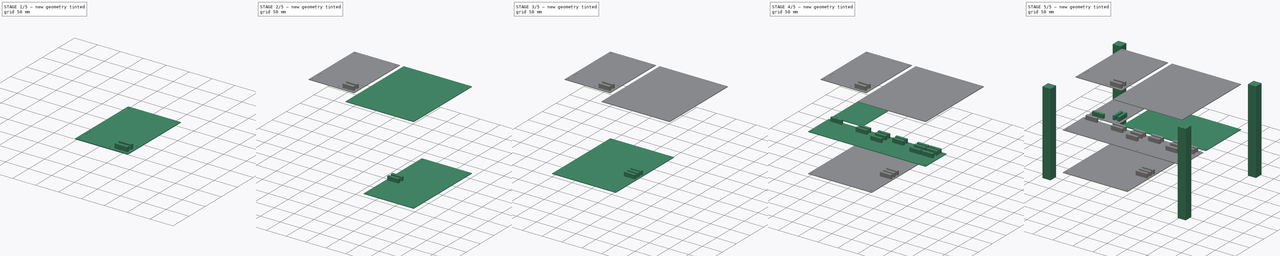
[diagram: build sequence overview — one tinted view per stage of 5, left to right]
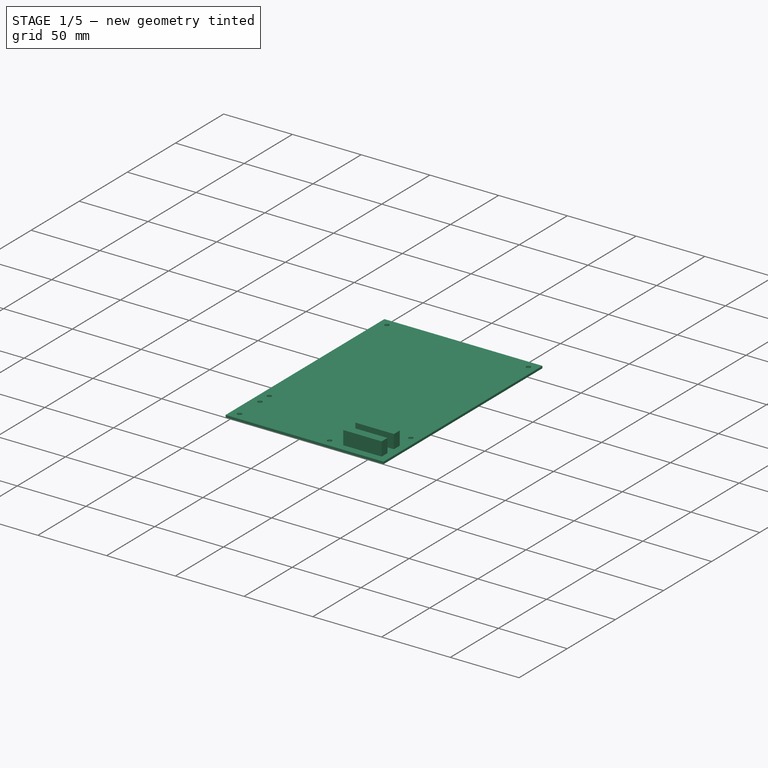
[diagram: stage 1 of 5 — iso view after this stage's code; geometry added in this stage tinted green]
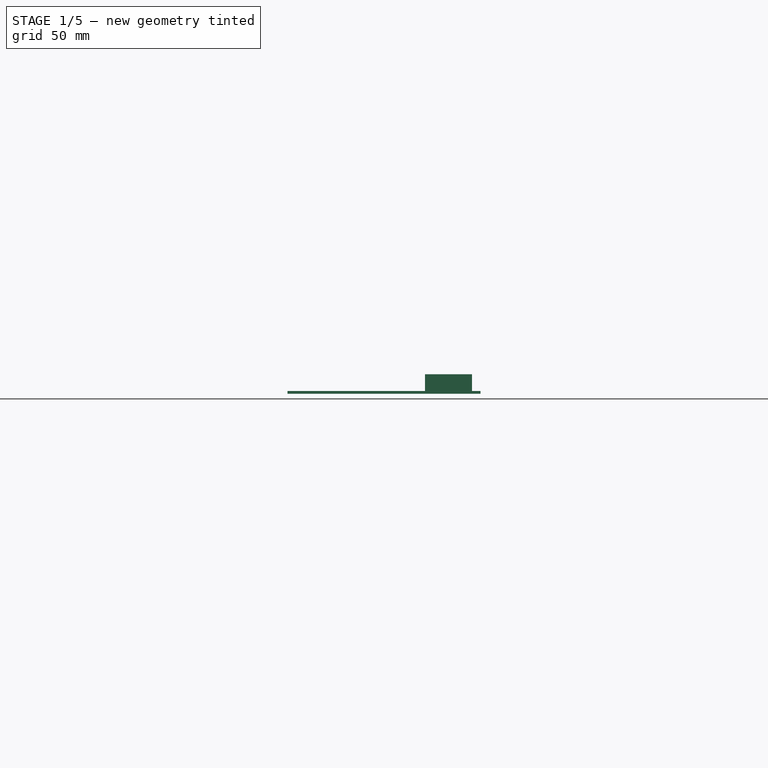
[diagram: stage 1 of 5 — front view after this stage's code; geometry added in this stage tinted green]
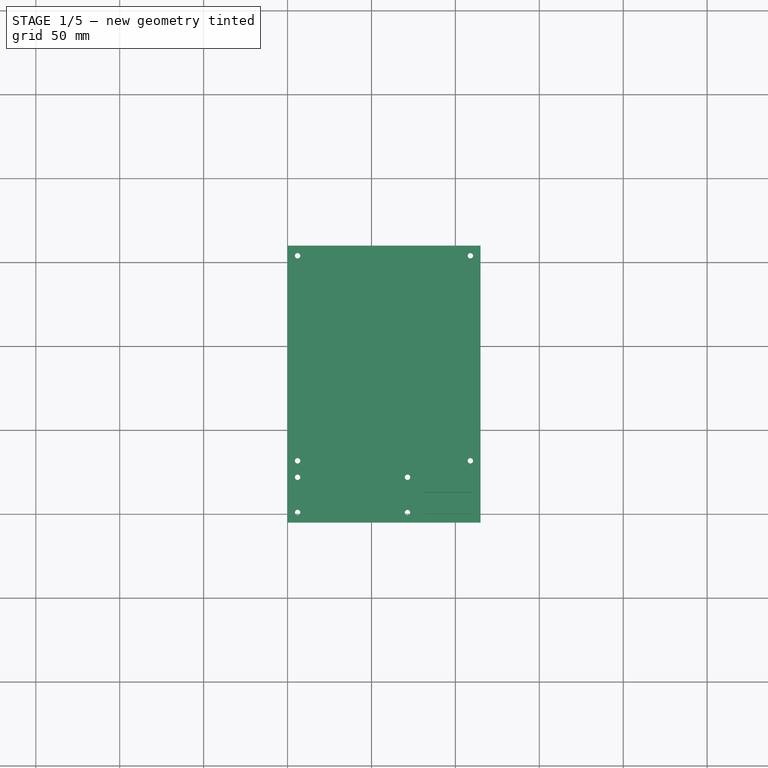
[diagram: stage 1 of 5 — top view after this stage's code; geometry added in this stage tinted green]
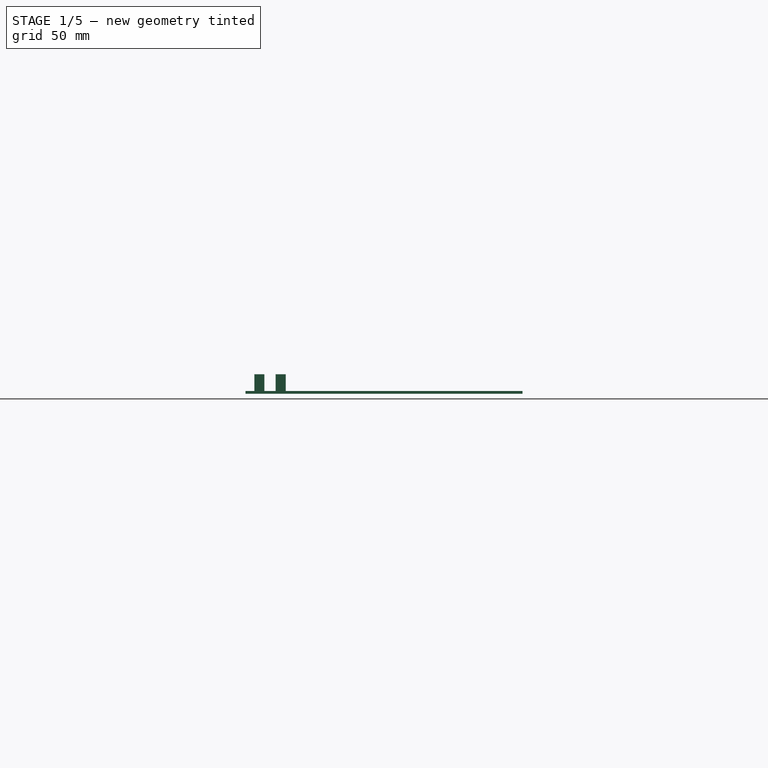
[diagram: stage 1 of 5 — right view after this stage's code; geometry added in this stage tinted green]
FCSTD DOCUMENT  (FreeCAD 1.0R39319 (Git))
Label: croqui
License: All rights reserved
LicenseURL: https://en.wikipedia.org/wiki/All_rights_reserved
objects: Sketcher::SketchObject×14, Part::Extrusion×14, Part::MultiFuse×5
note: 47 computed .brp shape members not serialized (recipe doc carries the construction recipe); baked Part::Feature solids carry a one-line shape summary decoded from their .brp

FEATURE [Sketcher::SketchObject] Sketch
  ArcFitTolerance = 1e-06
  FullyConstrained = true
  MakeInternals = false
  sketch-geometry (4):
    g0: LineSegment StartX=0 StartY=0 StartZ=0 EndX=297 EndY=0 EndZ=0
    g1: LineSegment StartX=297 StartY=0 StartZ=0 EndX=297 EndY=210 EndZ=0
    g2: LineSegment StartX=297 StartY=210 StartZ=0 EndX=0 EndY=210 EndZ=0
    g3: LineSegment StartX=0 StartY=210 StartZ=0 EndX=0 EndY=0 EndZ=0
  constraints (11):
    c: Coincident(g0,g1)
    c: Coincident(g1,g2)
    c: Coincident(g2,g3)
    c: Coincident(g3,g0)
    c: Horizontal(g0)
    c: Horizontal(g2)
    c: Vertical(g1)
    c: Vertical(g3)
    c: Distance(g1,g3) = 297
    c: Distance(g0,g2) = 210
    c: Coincident(g0,g-1)
FEATURE [Part::Extrusion] Extrude
  Base = -> Sketch
  Dir = (0,0,1)
  DirMode = 2
  FaceMakerClass = Part::FaceMakerBullseye
  FaceMakerMode = 3
  LengthFwd = 4
  LengthRev = 0
  Solid = true
  Symmetric = false
FEATURE [Sketcher::SketchObject] Sketch011
  ArcFitTolerance = 1e-06
  ExternalGeometry = -> [Extrude]
  FullyConstrained = true
  MakeInternals = false
  Placement = pos=(0,0,206) rot=(0,0,1;0rad)
  sketch-geometry (20):
    g0: LineSegment StartX=0 StartY=210 StartZ=0 EndX=0 EndY=45 EndZ=0
    g1: LineSegment StartX=0 StartY=45 StartZ=0 EndX=114.935 EndY=45 EndZ=0
    g2: LineSegment StartX=114.935 StartY=45 StartZ=0 EndX=114.935 EndY=210 EndZ=0
    g3: LineSegment StartX=114.935 StartY=210 StartZ=0 EndX=0 EndY=210 EndZ=0
    g4: Circle CenterX=6 CenterY=204 CenterZ=0 NormalX=0 NormalY=0 NormalZ=1 AngleXU=0 Radius=1.6
    g5: Circle CenterX=108.935 CenterY=204 CenterZ=0 NormalX=0 NormalY=0 NormalZ=1 AngleXU=0 Radius=1.6
    g6: Circle CenterX=6 CenterY=51 CenterZ=0 NormalX=0 NormalY=0 NormalZ=1 AngleXU=0 Radius=1.6
    g7: Circle CenterX=6 CenterY=72 CenterZ=0 NormalX=0 NormalY=0 NormalZ=1 AngleXU=0 Radius=1.6
    g8: Circle CenterX=71.47 CenterY=72 CenterZ=0 NormalX=0 NormalY=0 NormalZ=1 AngleXU=0 Radius=1.6
    g9: Circle CenterX=71.47 CenterY=51 CenterZ=0 NormalX=0 NormalY=0 NormalZ=1 AngleXU=0 Radius=1.6
    g10: Circle CenterX=108.935 CenterY=81.822 CenterZ=0 NormalX=0 NormalY=0 NormalZ=1 AngleXU=0 Radius=1.6
    g11: LineSegment [constr] StartX=6 StartY=204 StartZ=0 EndX=6 EndY=210 EndZ=0
    g12: LineSegment [constr] StartX=6 StartY=204 StartZ=0 EndX=0 EndY=204 EndZ=0
    g13: LineSegment [constr] StartX=108.935 StartY=204 StartZ=0 EndX=114.935 EndY=204 EndZ=0
    g14: LineSegment [constr] StartX=6 StartY=51 StartZ=0 EndX=6 EndY=45 EndZ=0
    g15: LineSegment [constr] StartX=6 StartY=51 StartZ=0 EndX=0 EndY=51 EndZ=0
    g16: LineSegment [constr] StartX=6 StartY=51 StartZ=0 EndX=71.47 EndY=51 EndZ=0
    g17: LineSegment [constr] StartX=6 StartY=51 StartZ=0 EndX=6 EndY=72 EndZ=0
    g18: LineSegment [constr] StartX=108.935 StartY=81.822 StartZ=0 EndX=108.935 EndY=45 EndZ=0
    g19: Circle CenterX=6 CenterY=81.822 CenterZ=0 NormalX=0 NormalY=0 NormalZ=1 AngleXU=0 Radius=1.6
  constraints (57):
    c: Coincident(g0,g1)
    c: Coincident(g1,g2)
    c: Coincident(g2,g3)
    c: Coincident(g3,g0)
    c: Vertical(g0)
    c: Vertical(g2)
    c: Horizontal(g3)
    c: DistanceX(g3,g3) = 114.935
    c: DistanceY(g0,g0) = 165
    c: Coincident(g-3,g0)
    c: Diameter(g4) = 3.2
    c: Equal(g4,g5)
    c: Equal(g5,g7)
    c: Equal(g7,g6)
    c: Equal(g6,g9)
    c: Equal(g9,g8)
    c: Equal(g8,g10)
    c: Coincident(g11,g4)
    c: PointOnObject(g11,g3)
    c: Vertical(g11)
    c: Coincident(g12,g4)
    c: PointOnObject(g12,g0)
    c: Horizontal(g12)
    c: Distance(g12) = 6
    c: Equal(g12,g11)
    c: Coincident(g13,g5)
    c: PointOnObject(g13,g2)
    c: Horizontal(g13)
    c: Equal(g13,g12)
    c: Horizontal(g4,g5)
    c: Coincident(g14,g6)
    c: PointOnObject(g14,g1)
    c: Vertical(g14)
    c: Coincident(g15,g6)
    c: PointOnObject(g15,g0)
    c: Horizontal(g15)
    c: Distance(g15) = 6
    c: Distance(g14) = 6
    c: Coincident(g16,g6)
    c: Coincident(g16,g9)
    c: DistanceX(g16,g16) = 65.47
    c: Horizontal(g16)
    c: Coincident(g17,g6)
    c: Coincident(g17,g7)
    c: Vertical(g17)
    c: DistanceY(g17,g17) = 21
    c: Vertical(g9,g8)
    c: Horizontal(g7,g8)
    c: Coincident(g18,g10)
    c: PointOnObject(g18,g1)
    c: Vertical(g18)
    c: DistanceY(g18,g18) = 36.822
    c: Vertical(g5,g10)
    c: Horizontal(g1)
    c: Equal(g19,g4)
    c: Horizontal(g19,g10)
    c: Vertical(g19,g4)
FEATURE [Sketcher::SketchObject] Sketch012
  ArcFitTolerance = 1e-06
  ExternalGeometry = -> [Extrude]
  FullyConstrained = true
  MakeInternals = false
  Placement = pos=(0,0,206) rot=(0,0,1;0rad)
  sketch-geometry (4):
    g0: LineSegment StartX=297 StartY=210 StartZ=0 EndX=124.935 EndY=210 EndZ=0
    g1: LineSegment StartX=124.935 StartY=210 StartZ=0 EndX=124.935 EndY=0 EndZ=0
    g2: LineSegment StartX=124.935 StartY=0 StartZ=0 EndX=297 EndY=0 EndZ=0
    g3: LineSegment StartX=297 StartY=0 StartZ=0 EndX=297 EndY=210 EndZ=0
  constraints (11):
    c: Coincident(g0,g1)
    c: Coincident(g1,g2)
    c: Coincident(g2,g3)
    c: Coincident(g3,g0)
    c: Horizontal(g0)
    c: Horizontal(g2)
    c: Vertical(g1)
    c: Vertical(g3)
    c: Coincident(g0,g-3)
    c: DistanceY(g3,g3) = 210
    c: DistanceX(g-4,g0) = 10
FEATURE [Part::Extrusion] Extrude011
  Base = -> Sketch011
  Dir = (0,0,1)
  DirMode = 2
  FaceMakerClass = Part::FaceMakerBullseye
  FaceMakerMode = 3
  LengthFwd = 1.6
  LengthRev = 0
  Solid = true
  Symmetric = false
FEATURE [Sketcher::SketchObject] Sketch013
  ArcFitTolerance = 1e-06
  AttachmentSupport = -> [Extrude011]
  ExternalGeometry = -> [Extrude011]
  FullyConstrained = true
  MakeInternals = false
  MapMode = 5
  Placement = pos=(0,0,207.6) rot=(0,0,1;0rad)
  sketch-geometry (11):
    g0: LineSegment StartX=81.885 StartY=68.947 StartZ=0 EndX=81.885 EndY=62.947 EndZ=0
    g1: LineSegment StartX=81.885 StartY=62.947 StartZ=0 EndX=109.885 EndY=62.947 EndZ=0
    g2: LineSegment StartX=109.885 StartY=62.947 StartZ=0 EndX=109.885 EndY=68.947 EndZ=0
    g3: LineSegment StartX=109.885 StartY=68.947 StartZ=0 EndX=81.885 EndY=68.947 EndZ=0
    g4: LineSegment StartX=81.885 StartY=56.247 StartZ=0 EndX=81.885 EndY=50.247 EndZ=0
    g5: LineSegment StartX=81.885 StartY=50.247 StartZ=0 EndX=109.885 EndY=50.247 EndZ=0
    g6: LineSegment StartX=109.885 StartY=50.247 StartZ=0 EndX=109.885 EndY=56.247 EndZ=0
    g7: LineSegment StartX=109.885 StartY=56.247 StartZ=0 EndX=81.885 EndY=56.247 EndZ=0
    g8: LineSegment [constr] StartX=81.885 StartY=56.247 StartZ=0 EndX=81.885 EndY=68.947 EndZ=0
    g9: LineSegment [constr] StartX=109.885 StartY=50.247 StartZ=0 EndX=114.935 EndY=50.247 EndZ=0
    g10: LineSegment [constr] StartX=109.885 StartY=50.247 StartZ=0 EndX=109.885 EndY=45 EndZ=0
  constraints (32):
    c: Coincident(g0,g1)
    c: Coincident(g1,g2)
    c: Coincident(g2,g3)
    c: Coincident(g3,g0)
    c: Vertical(g0)
    c: Vertical(g2)
    c: Horizontal(g1)
    c: Horizontal(g3)
    c: Coincident(g4,g5)
    c: Coincident(g5,g6)
    c: Coincident(g6,g7)
    c: Coincident(g7,g4)
    c: Vertical(g4)
    c: Vertical(g6)
    c: Horizontal(g5)
    c: Horizontal(g7)
    c: DistanceX(g3,g3) = 28
    c: DistanceY(g0,g0) = 6
    c: Equal(g0,g4)
    c: Vertical(g0,g4)
    c: Vertical(g1,g6)
    c: Coincident(g8,g4)
    c: Coincident(g8,g0)
    c: DistanceY(g8,g8) = 12.7
    c: Coincident(g9,g5)
    c: Horizontal(g9)
    c: Coincident(g10,g5)
    c: Vertical(g10)
    c: DistanceX(g9,g9) = 5.05
    c: DistanceY(g10,g10) = 5.247
    c: PointOnObject(g9,g-3)
    c: PointOnObject(g10,g-4)
FEATURE [Part::Extrusion] Extrude013
  Base = -> Sketch013
  Dir = (0,0,1)
  DirMode = 2
  FaceMakerClass = Part::FaceMakerBullseye
  FaceMakerMode = 3
  LengthFwd = 10
  LengthRev = 0
  Solid = true
  Symmetric = false
FEATURE [Part::MultiFuse] Fusion004  label="MEM"
  Refine = true
  Shapes = -> [Extrude011,Extrude013]
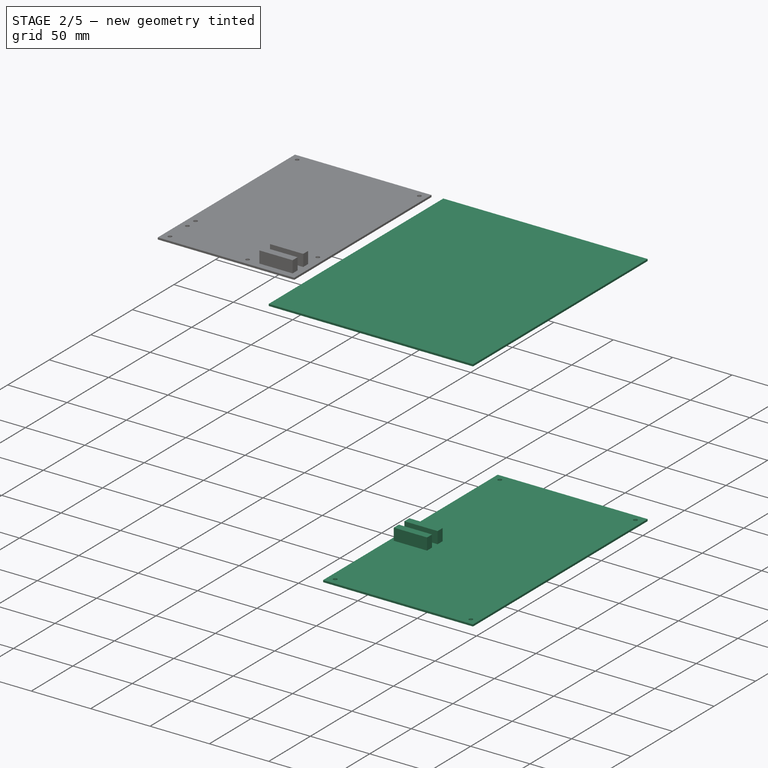
[diagram: stage 2 of 5 — iso view after this stage's code; geometry added in this stage tinted green]
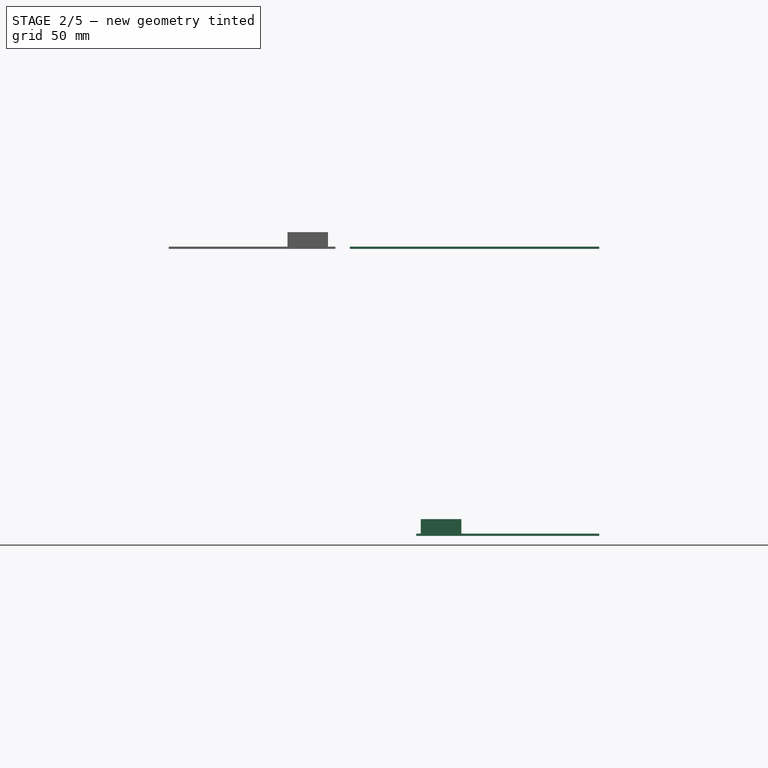
[diagram: stage 2 of 5 — front view after this stage's code; geometry added in this stage tinted green]
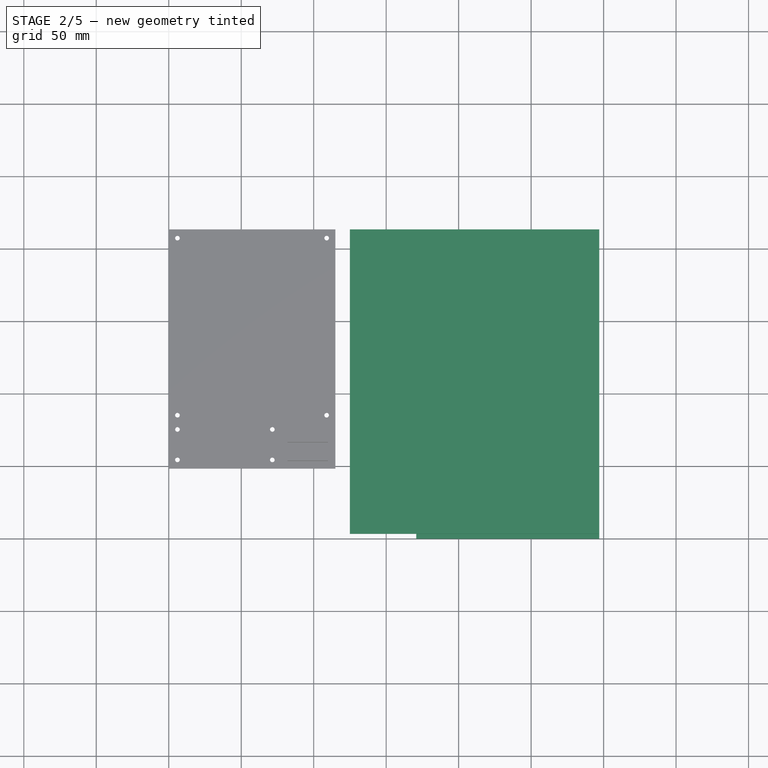
[diagram: stage 2 of 5 — top view after this stage's code; geometry added in this stage tinted green]
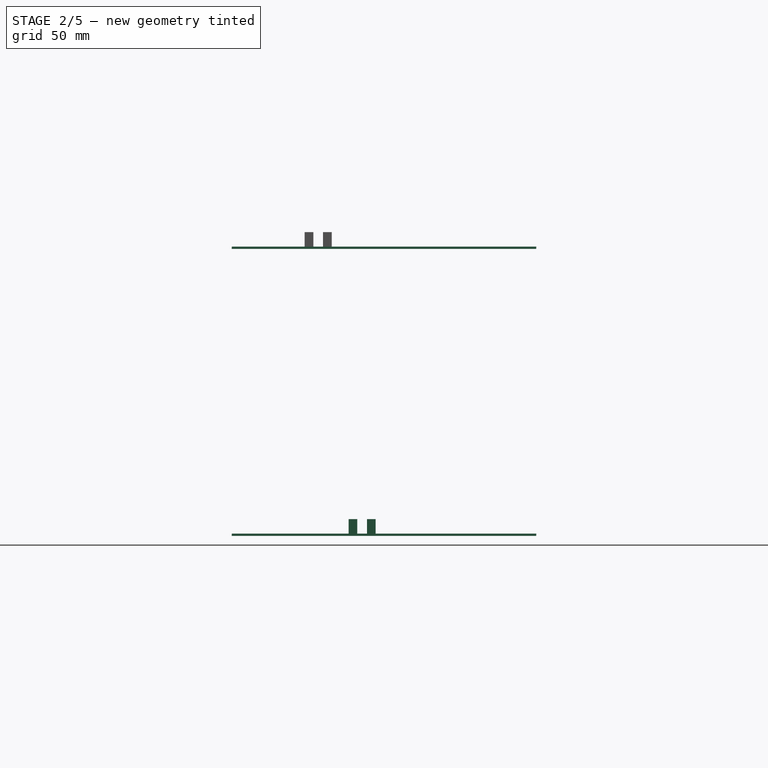
[diagram: stage 2 of 5 — right view after this stage's code; geometry added in this stage tinted green]
FEATURE [Sketcher::SketchObject] Sketch001
  ArcFitTolerance = 1e-06
  FullyConstrained = true
  MakeInternals = false
  Placement = pos=(0,0,8) rot=(0,0,1;0rad)
  sketch-geometry (12):
    g0: LineSegment StartX=297 StartY=0 StartZ=0 EndX=297 EndY=210 EndZ=0
    g1: LineSegment StartX=297 StartY=210 StartZ=0 EndX=170.735 EndY=210 EndZ=0
    g2: LineSegment StartX=170.735 StartY=210 StartZ=0 EndX=170.735 EndY=0 EndZ=0
    g3: LineSegment StartX=170.735 StartY=0 StartZ=0 EndX=297 EndY=0 EndZ=0
    g4: Circle CenterX=176.735 CenterY=204 CenterZ=0 NormalX=0 NormalY=0 NormalZ=1 AngleXU=0 Radius=1.6
    g5: Circle CenterX=291 CenterY=204 CenterZ=0 NormalX=0 NormalY=0 NormalZ=1 AngleXU=0 Radius=1.6
    g6: Circle CenterX=291 CenterY=6 CenterZ=0 NormalX=0 NormalY=0 NormalZ=1 AngleXU=0 Radius=1.6
    g7: Circle CenterX=176.735 CenterY=6 CenterZ=0 NormalX=0 NormalY=0 NormalZ=1 AngleXU=0 Radius=1.6
    g8: LineSegment [constr] StartX=176.735 StartY=204 StartZ=0 EndX=176.735 EndY=210 EndZ=0
    g9: LineSegment [constr] StartX=176.735 StartY=204 StartZ=0 EndX=170.735 EndY=204 EndZ=0
    g10: LineSegment [constr] StartX=291 StartY=204 StartZ=0 EndX=297 EndY=204 EndZ=0
    g11: LineSegment [constr] StartX=176.735 StartY=6 StartZ=0 EndX=176.735 EndY=0 EndZ=0
  constraints (36):
    c: Coincident(g0,g1)
    c: Coincident(g1,g2)
    c: Coincident(g2,g3)
    c: Coincident(g3,g0)
    c: Vertical(g0)
    c: Vertical(g2)
    c: Horizontal(g1)
    c: Horizontal(g3)
    c: Horizontal(g-1,g0)
    c: DistanceX(g-1,g0) = 297
    c: DistanceY(g0,g0) = 210
    c: DistanceX(g1,g1) = 126.265
    c: Diameter(g4) = 3.2
    c: Coincident(g8,g4)
    c: PointOnObject(g8,g1)
    c: Vertical(g8)
    c: Coincident(g9,g4)
    c: PointOnObject(g9,g2)
    c: Horizontal(g9)
    c: Coincident(g10,g5)
    c: PointOnObject(g10,g0)
    c: Horizontal(g10)
    c: Coincident(g11,g7)
    c: PointOnObject(g11,g3)
    c: Vertical(g11)
    c: Equal(g4,g5)
    c: Equal(g5,g6)
    c: Equal(g6,g7)
    c: Distance(g9) = 6
    c: Equal(g9,g8)
    c: Equal(g8,g10)
    c: Equal(g10,g11)
    c: Horizontal(g4,g5)
    c: Vertical(g5,g6)
    c: Horizontal(g6,g7)
    c: Vertical(g7,g4)
FEATURE [Part::Extrusion] Extrude001
  Base = -> Sketch001
  Dir = (0,0,1)
  DirMode = 2
  FaceMakerClass = Part::FaceMakerBullseye
  FaceMakerMode = 3
  LengthFwd = 1.6
  LengthRev = 0
  Solid = true
  Symmetric = false
FEATURE [Sketcher::SketchObject] Sketch006
  ArcFitTolerance = 1e-06
  AttachmentSupport = -> [Extrude001]
  ExternalGeometry = -> [Extrude001]
  FullyConstrained = true
  MakeInternals = false
  MapMode = 5
  Placement = pos=(0,0,9.6) rot=(0,0,1;0rad)
  sketch-geometry (13):
    g0: LineSegment StartX=173.88 StartY=99.255 StartZ=0 EndX=173.88 EndY=93.255 EndZ=0
    g1: LineSegment StartX=173.88 StartY=93.255 StartZ=0 EndX=201.88 EndY=93.255 EndZ=0
    g2: LineSegment StartX=201.88 StartY=93.255 StartZ=0 EndX=201.88 EndY=99.255 EndZ=0
    g3: LineSegment StartX=201.88 StartY=99.255 StartZ=0 EndX=173.88 EndY=99.255 EndZ=0
    g4: LineSegment StartX=173.88 StartY=86.555 StartZ=0 EndX=173.88 EndY=80.555 EndZ=0
    g5: LineSegment StartX=173.88 StartY=80.555 StartZ=0 EndX=201.88 EndY=80.555 EndZ=0
    g6: LineSegment StartX=201.88 StartY=80.555 StartZ=0 EndX=201.88 EndY=86.555 EndZ=0
    g7: LineSegment StartX=201.88 StartY=86.555 StartZ=0 EndX=173.88 EndY=86.555 EndZ=0
    g8: LineSegment [constr] StartX=173.88 StartY=93.255 StartZ=0 EndX=173.88 EndY=86.555 EndZ=0
    g9: LineSegment [constr] StartX=170.735 StartY=0 StartZ=0 EndX=173.88 EndY=0 EndZ=0
    g10: LineSegment [constr] StartX=173.88 StartY=0 StartZ=0 EndX=173.88 EndY=80.555 EndZ=0
    g11: LineSegment [constr] StartX=173.88 StartY=80.555 StartZ=0 EndX=170.735 EndY=80.555 EndZ=0
    g12: LineSegment [constr] StartX=170.735 StartY=80.555 StartZ=0 EndX=170.735 EndY=0 EndZ=0
  constraints (36):
    c: Coincident(g0,g1)
    c: Coincident(g1,g2)
    c: Coincident(g2,g3)
    c: Coincident(g3,g0)
    c: Vertical(g0)
    c: Vertical(g2)
    c: Horizontal(g1)
    c: Horizontal(g3)
    c: Distance(g0,g2) = 28
    c: Distance(g1,g3) = 6
    c: Coincident(g4,g5)
    c: Coincident(g5,g6)
    c: Coincident(g6,g7)
    c: Coincident(g7,g4)
    c: Vertical(g4)
    c: Vertical(g6)
    c: Horizontal(g5)
    c: Horizontal(g7)
    c: Equal(g7,g3)
    c: Equal(g0,g4)
    c: Vertical(g0,g4)
    c: Coincident(g8,g0)
    c: Coincident(g8,g4)
    c: DistanceY(g8,g8) = 6.7
    c: Coincident(g9,g10)
    c: Coincident(g10,g11)
    c: Coincident(g11,g12)
    c: Coincident(g12,g9)
    c: Horizontal(g9)
    c: Horizontal(g11)
    c: Vertical(g10)
    c: Vertical(g12)
    c: Coincident(g9,g-3)
    c: Coincident(g10,g4)
    c: DistanceY(g12,g12) = 80.555
    c: DistanceX(g11,g11) = 3.145
FEATURE [Part::Extrusion] Extrude006
  Base = -> Sketch006
  Dir = (0,0,1)
  DirMode = 2
  FaceMakerClass = Part::FaceMakerBullseye
  FaceMakerMode = 3
  LengthFwd = 10
  LengthRev = 0
  Solid = true
  Symmetric = false
FEATURE [Part::MultiFuse] Fusion003  label="ULA8"
  Refine = true
  Shapes = -> [Extrude006,Extrude001]
FEATURE [Part::Extrusion] Extrude012
  Base = -> Sketch012
  Dir = (0,0,1)
  DirMode = 2
  FaceMakerClass = Part::FaceMakerBullseye
  FaceMakerMode = 3
  LengthFwd = 1.6
  LengthRev = 0
  Solid = true
  Symmetric = false
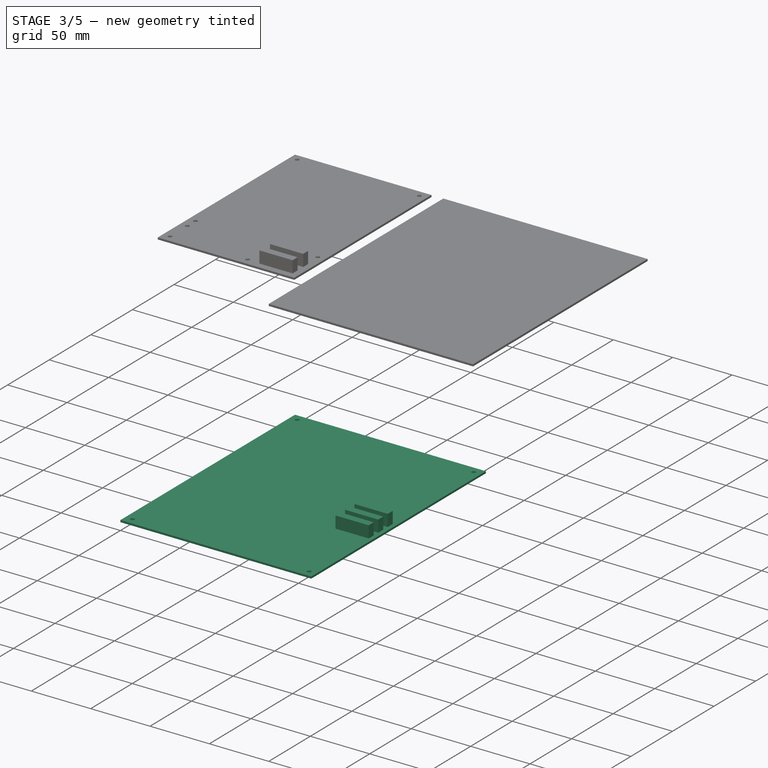
[diagram: stage 3 of 5 — iso view after this stage's code; geometry added in this stage tinted green]
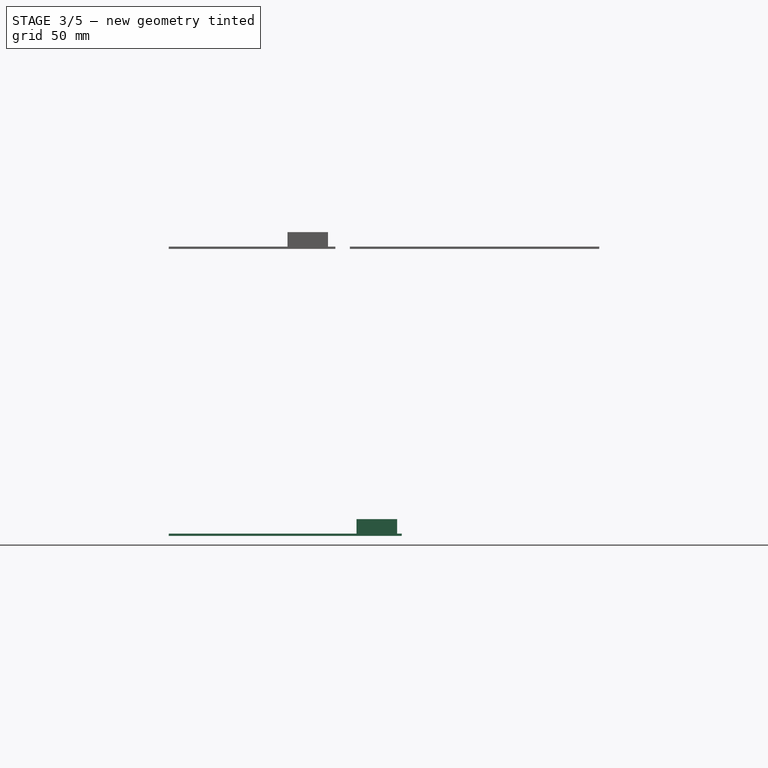
[diagram: stage 3 of 5 — front view after this stage's code; geometry added in this stage tinted green]
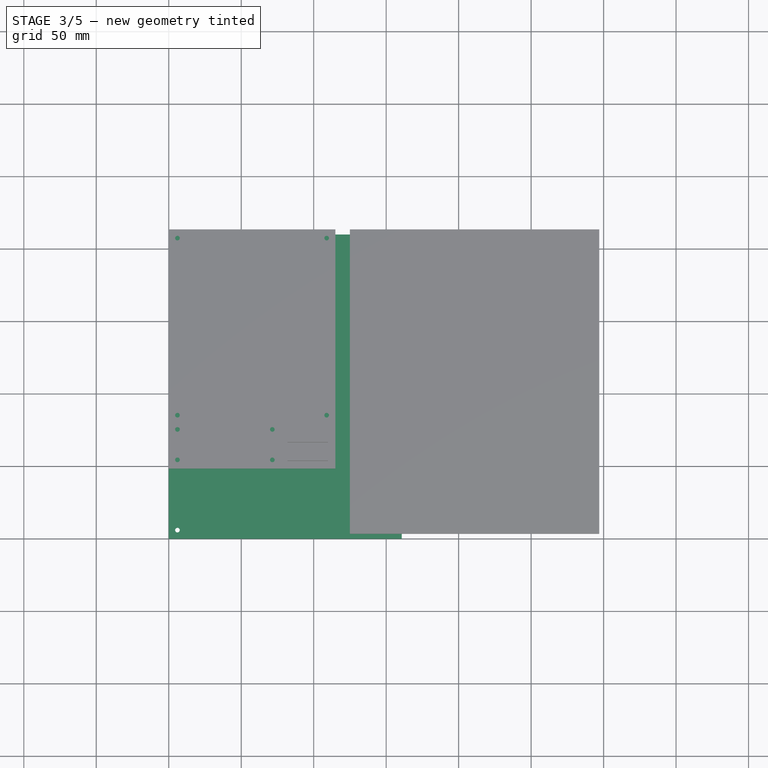
[diagram: stage 3 of 5 — top view after this stage's code; geometry added in this stage tinted green]
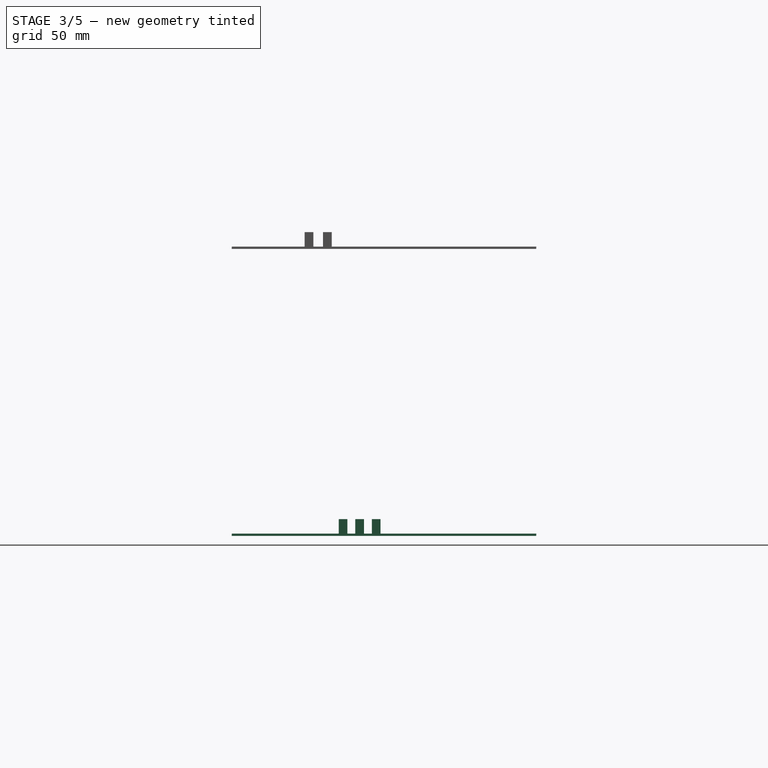
[diagram: stage 3 of 5 — right view after this stage's code; geometry added in this stage tinted green]
FEATURE [Sketcher::SketchObject] Sketch002
  ArcFitTolerance = 1e-06
  ExternalGeometry = -> [Fusion003]
  FullyConstrained = true
  MakeInternals = false
  Placement = pos=(0,0,8) rot=(0,0,1;0rad)
  sketch-geometry (12):
    g0: LineSegment StartX=0 StartY=0 StartZ=0 EndX=160.74 EndY=0 EndZ=0
    g1: LineSegment StartX=160.74 StartY=0 StartZ=0 EndX=160.74 EndY=210 EndZ=0
    g2: LineSegment StartX=160.74 StartY=210 StartZ=0 EndX=0 EndY=210 EndZ=0
    g3: LineSegment StartX=0 StartY=210 StartZ=0 EndX=0 EndY=0 EndZ=0
    g4: Circle CenterX=6 CenterY=204 CenterZ=0 NormalX=0 NormalY=0 NormalZ=1 AngleXU=0 Radius=1.6
    g5: Circle CenterX=154.74 CenterY=204 CenterZ=0 NormalX=0 NormalY=0 NormalZ=1 AngleXU=0 Radius=1.6
    g6: Circle CenterX=154.74 CenterY=6 CenterZ=0 NormalX=0 NormalY=0 NormalZ=1 AngleXU=0 Radius=1.6
    g7: Circle CenterX=6 CenterY=6 CenterZ=0 NormalX=0 NormalY=0 NormalZ=1 AngleXU=0 Radius=1.6
    g8: LineSegment [constr] StartX=6 StartY=204 StartZ=0 EndX=6 EndY=210 EndZ=0
    g9: LineSegment [constr] StartX=6 StartY=204 StartZ=0 EndX=0 EndY=204 EndZ=0
    g10: LineSegment [constr] StartX=154.74 StartY=204 StartZ=0 EndX=160.74 EndY=204 EndZ=0
    g11: LineSegment [constr] StartX=6 StartY=6 StartZ=0 EndX=6 EndY=0 EndZ=0
  constraints (35):
    c: Coincident(g0,g1)
    c: Coincident(g1,g2)
    c: Coincident(g2,g3)
    c: Coincident(g3,g0)
    c: Horizontal(g0)
    c: Horizontal(g2)
    c: Vertical(g1)
    c: Vertical(g3)
    c: Coincident(g0,g-1)
    c: DistanceY(g3,g3) = 210
    c: DistanceX(g2,g2) = 160.74
    c: Diameter(g4) = 3.2
    c: Equal(g6,g7)
    c: Equal(g7,g5)
    c: Equal(g5,g4)
    c: Coincident(g8,g4)
    c: PointOnObject(g8,g2)
    c: Vertical(g8)
    c: Coincident(g9,g4)
    c: PointOnObject(g9,g3)
    c: Horizontal(g9)
    c: Distance(g9) = 6
    c: Equal(g9,g8)
    c: Coincident(g10,g5)
    c: PointOnObject(g10,g1)
    c: Horizontal(g10)
    c: Equal(g10,g9)
    c: Horizontal(g4,g5)
    c: Vertical(g5,g6)
    c: Vertical(g7,g4)
    c: Coincident(g11,g7)
    c: PointOnObject(g11,g0)
    c: Vertical(g11)
    c: Equal(g11,g8)
    c: Horizontal(g7,g6)
FEATURE [Part::Extrusion] Extrude002
  Base = -> Sketch002
  Dir = (0,0,1)
  DirMode = 2
  FaceMakerClass = Part::FaceMakerBullseye
  FaceMakerMode = 3
  LengthFwd = 1.6
  LengthRev = 0
  Solid = true
  Symmetric = false
FEATURE [Sketcher::SketchObject] Sketch007
  ArcFitTolerance = 1e-06
  AttachmentSupport = -> [Extrude002]
  ExternalGeometry = -> [Extrude002]
  FullyConstrained = true
  MakeInternals = false
  MapMode = 5
  Placement = pos=(0,0,9.6) rot=(0,0,1;0rad)
  sketch-geometry (18):
    g0: LineSegment StartX=157.552 StartY=102.603 StartZ=0 EndX=129.552 EndY=102.603 EndZ=0
    g1: LineSegment StartX=129.552 StartY=102.603 StartZ=0 EndX=129.552 EndY=96.603 EndZ=0
    g2: LineSegment StartX=129.552 StartY=96.603 StartZ=0 EndX=157.552 EndY=96.603 EndZ=0
    g3: LineSegment StartX=157.552 StartY=96.603 StartZ=0 EndX=157.552 EndY=102.603 EndZ=0
    g4: LineSegment StartX=129.552 StartY=91.173 StartZ=0 EndX=129.552 EndY=85.173 EndZ=0
    g5: LineSegment StartX=129.552 StartY=85.173 StartZ=0 EndX=157.552 EndY=85.173 EndZ=0
    g6: LineSegment StartX=157.552 StartY=85.173 StartZ=0 EndX=157.552 EndY=91.173 EndZ=0
    g7: LineSegment StartX=157.552 StartY=91.173 StartZ=0 EndX=129.552 EndY=91.173 EndZ=0
    g8: LineSegment [constr] StartX=129.552 StartY=96.603 StartZ=0 EndX=129.552 EndY=91.173 EndZ=0
    g9: LineSegment StartX=129.552 StartY=79.743 StartZ=0 EndX=129.552 EndY=73.743 EndZ=0
    g10: LineSegment StartX=129.552 StartY=73.743 StartZ=0 EndX=157.552 EndY=73.743 EndZ=0
    g11: LineSegment StartX=157.552 StartY=73.743 StartZ=0 EndX=157.552 EndY=79.743 EndZ=0
    g12: LineSegment StartX=157.552 StartY=79.743 StartZ=0 EndX=129.552 EndY=79.743 EndZ=0
    g13: LineSegment [constr] StartX=129.552 StartY=85.173 StartZ=0 EndX=129.552 EndY=79.743 EndZ=0
    g14: LineSegment [constr] StartX=160.74 StartY=0 StartZ=0 EndX=160.74 EndY=73.743 EndZ=0
    g15: LineSegment [constr] StartX=160.74 StartY=73.743 StartZ=0 EndX=157.552 EndY=73.743 EndZ=0
    g16: LineSegment [constr] StartX=157.552 StartY=73.743 StartZ=0 EndX=157.552 EndY=0 EndZ=0
    g17: LineSegment [constr] StartX=157.552 StartY=0 StartZ=0 EndX=160.74 EndY=0 EndZ=0
  constraints (50):
    c: Coincident(g0,g1)
    c: Coincident(g1,g2)
    c: Coincident(g2,g3)
    c: Coincident(g3,g0)
    c: Horizontal(g0)
    c: Horizontal(g2)
    c: Vertical(g1)
    c: Vertical(g3)
    c: Distance(g1,g3) = 28
    c: Distance(g0,g2) = 6
    c: Coincident(g4,g5)
    c: Coincident(g5,g6)
    c: Coincident(g6,g7)
    c: Coincident(g7,g4)
    c: Vertical(g4)
    c: Vertical(g6)
    c: Horizontal(g5)
    c: Horizontal(g7)
    c: Equal(g0,g7)
    c: Equal(g1,g4)
    c: Vertical(g4,g1)
    c: Coincident(g8,g1)
    c: Coincident(g8,g4)
    c: DistanceY(g8,g8) = 5.43
    c: Coincident(g9,g10)
    c: Coincident(g10,g11)
    c: Coincident(g11,g12)
    c: Coincident(g12,g9)
    c: Vertical(g9)
    c: Vertical(g11)
    c: Horizontal(g10)
    c: Horizontal(g12)
    c: Equal(g9,g4)
    c: Equal(g5,g12)
    c: Coincident(g13,g4)
    c: Coincident(g13,g9)
    c: Vertical(g13)
    c: Equal(g8,g13)
    c: Coincident(g14,g15)
    c: Coincident(g15,g16)
    c: Coincident(g16,g17)
    c: Coincident(g17,g14)
    c: Vertical(g14)
    c: Vertical(g16)
    c: Horizontal(g15)
    c: Horizontal(g17)
    c: Coincident(g14,g-3)
    c: Coincident(g15,g10)
    c: DistanceY(g16,g16) = 73.743
    c: DistanceX(g15,g15) = 3.188
FEATURE [Part::Extrusion] Extrude007
  Base = -> Sketch007
  Dir = (0,0,1)
  DirMode = 2
  FaceMakerClass = Part::FaceMakerBullseye
  FaceMakerMode = 3
  LengthFwd = 10
  LengthRev = 0
  Solid = true
  Symmetric = false
FEATURE [Part::MultiFuse] Fusion002  label="CL"
  Refine = true
  Shapes = -> [Extrude007,Extrude002]
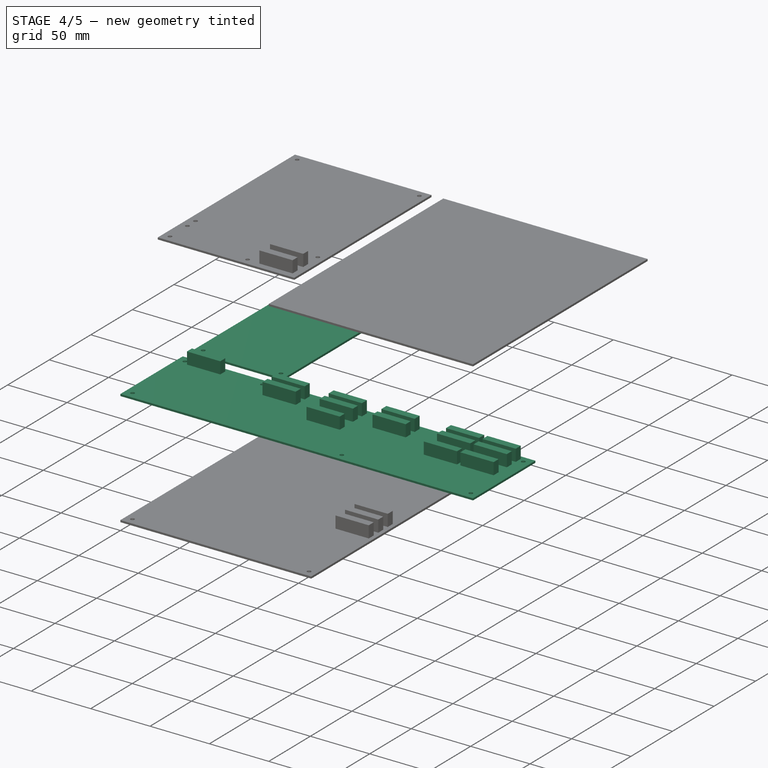
[diagram: stage 4 of 5 — iso view after this stage's code; geometry added in this stage tinted green]
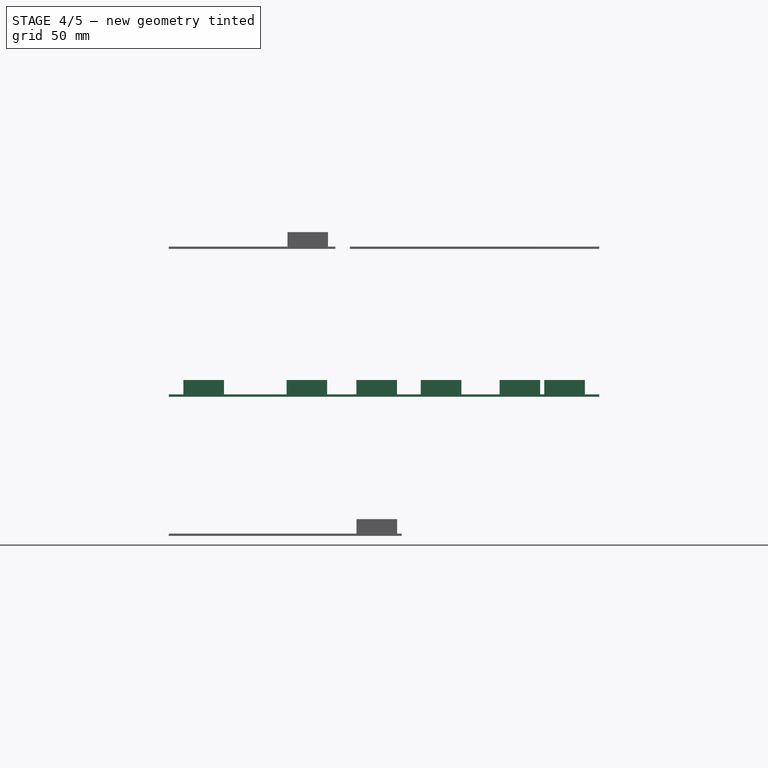
[diagram: stage 4 of 5 — front view after this stage's code; geometry added in this stage tinted green]
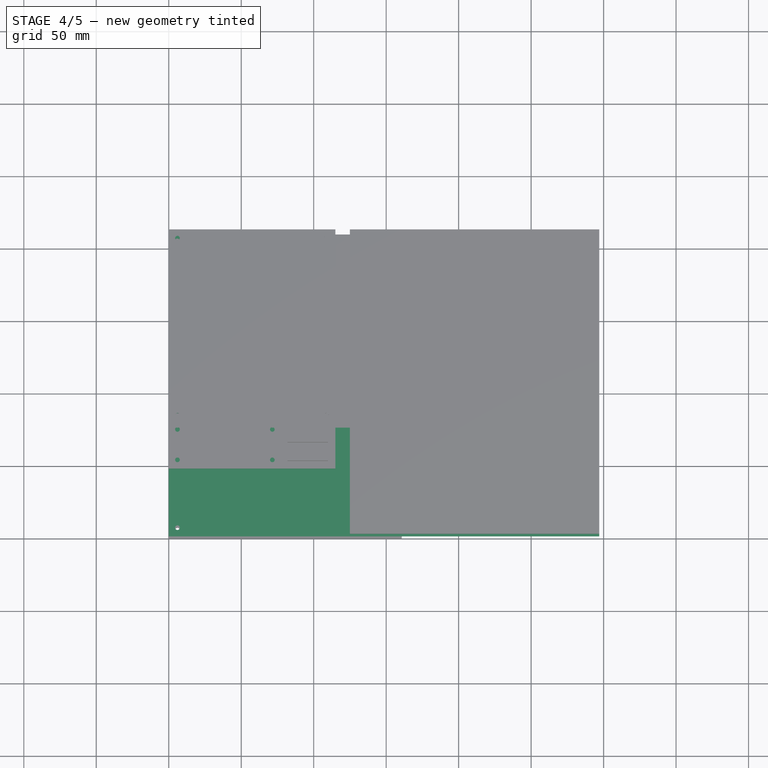
[diagram: stage 4 of 5 — top view after this stage's code; geometry added in this stage tinted green]
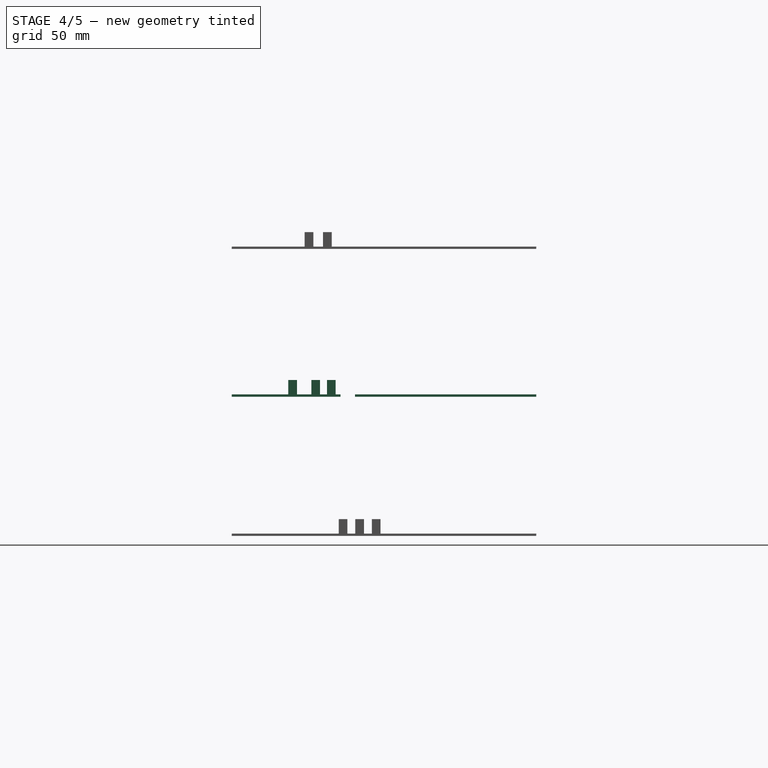
[diagram: stage 4 of 5 — right view after this stage's code; geometry added in this stage tinted green]
FEATURE [Sketcher::SketchObject] Sketch004
  ArcFitTolerance = 1e-06
  FullyConstrained = true
  MakeInternals = false
  Placement = pos=(0,0,104) rot=(0,0,1;0rad)
  sketch-geometry (16):
    g0: LineSegment StartX=0 StartY=0 StartZ=0 EndX=297 EndY=0 EndZ=0
    g1: LineSegment StartX=297 StartY=0 StartZ=0 EndX=297 EndY=75 EndZ=0
    g2: LineSegment StartX=297 StartY=75 StartZ=0 EndX=0 EndY=75 EndZ=0
    g3: LineSegment StartX=0 StartY=75 StartZ=0 EndX=0 EndY=0 EndZ=0
    g4: Circle CenterX=6 CenterY=69 CenterZ=0 NormalX=0 NormalY=0 NormalZ=1 AngleXU=0 Radius=1.6
    g5: Circle CenterX=6 CenterY=6 CenterZ=0 NormalX=0 NormalY=0 NormalZ=1 AngleXU=0 Radius=1.6
    g6: Circle CenterX=291 CenterY=69 CenterZ=0 NormalX=0 NormalY=0 NormalZ=1 AngleXU=0 Radius=1.6
    g7: Circle CenterX=291 CenterY=6 CenterZ=0 NormalX=0 NormalY=0 NormalZ=1 AngleXU=0 Radius=1.6
    g8: LineSegment [constr] StartX=6 StartY=69 StartZ=0 EndX=6 EndY=75 EndZ=0
    g9: LineSegment [constr] StartX=6 StartY=69 StartZ=0 EndX=0 EndY=69 EndZ=0
    g10: LineSegment [constr] StartX=291 StartY=69 StartZ=0 EndX=297 EndY=69 EndZ=0
    g11: LineSegment [constr] StartX=6 StartY=6 StartZ=0 EndX=6 EndY=0 EndZ=0
    g12: Circle CenterX=71.45 CenterY=69 CenterZ=0 NormalX=0 NormalY=0 NormalZ=1 AngleXU=0 Radius=1.6
    g13: LineSegment [constr] StartX=6 StartY=69 StartZ=0 EndX=71.45 EndY=69 EndZ=0
    g14: LineSegment [constr] StartX=0 StartY=6 StartZ=0 EndX=182.245 EndY=6 EndZ=0
    g15: Circle CenterX=182.245 CenterY=6 CenterZ=0 NormalX=0 NormalY=0 NormalZ=1 AngleXU=0 Radius=1.6
  constraints (46):
    c: Coincident(g0,g1)
    c: Coincident(g1,g2)
    c: Coincident(g2,g3)
    c: Coincident(g3,g0)
    c: Horizontal(g0)
    c: Horizontal(g2)
    c: Vertical(g1)
    c: Vertical(g3)
    c: Distance(g1,g3) = 297
    c: Distance(g0,g2) = 75
    c: Coincident(g0,g-1)
    c: Diameter(g4) = 3.2
    c: Equal(g5,g4)
    c: PointOnObject(g8,g2)
    c: Vertical(g8)
    c: PointOnObject(g9,g3)
    c: Horizontal(g9)
    c: Coincident(g10,g6)
    c: PointOnObject(g10,g1)
    c: Horizontal(g10)
    c: Coincident(g11,g5)
    c: PointOnObject(g11,g0)
    c: Vertical(g11)
    c: Horizontal(g4,g6)
    c: Vertical(g6,g7)
    c: Horizontal(g7,g5)
    c: Vertical(g5,g4)
    c: Equal(g4,g12)
    c: Coincident(g13,g12)
    c: Horizontal(g13)
    c: DistanceX(g13,g13) = 65.45
    c: Coincident(g9,g8)
    c: Coincident(g9,g13)
    c: Coincident(g9,g4)
    c: Distance(g9) = 6
    c: Equal(g8,g9)
    c: Equal(g11,g9)
    c: Equal(g10,g9)
    c: Equal(g7,g4)
    c: Equal(g6,g4)
    c: Distance(g14) = 182.245
    c: PointOnObject(g14,g3)
    c: Horizontal(g14)
    c: Horizontal(g14,g5)
    c: Coincident(g15,g14)
    c: Equal(g15,g6)
FEATURE [Part::Extrusion] Extrude004
  Base = -> Sketch004
  Dir = (0,0,1)
  DirMode = 2
  FaceMakerClass = Part::FaceMakerBullseye
  FaceMakerMode = 3
  LengthFwd = 1.6
  LengthRev = 0
  Solid = true
  Symmetric = false
FEATURE [Sketcher::SketchObject] Sketch005
  ArcFitTolerance = 1e-06
  AttachmentSupport = -> [Extrude004]
  ExternalGeometry = -> [Extrude004]
  FullyConstrained = true
  MakeInternals = false
  MapMode = 5
  Placement = pos=(0,0,105.6) rot=(0,0,1;0rad)
  sketch-geometry (71):
    g0: LineSegment StartX=173.88 StartY=71.65 StartZ=0 EndX=173.88 EndY=65.65 EndZ=0
    g1: LineSegment StartX=173.88 StartY=65.65 StartZ=0 EndX=201.88 EndY=65.65 EndZ=0
    g2: LineSegment StartX=201.88 StartY=65.65 StartZ=0 EndX=201.88 EndY=71.65 EndZ=0
    g3: LineSegment StartX=201.88 StartY=71.65 StartZ=0 EndX=173.88 EndY=71.65 EndZ=0
    g4: LineSegment StartX=173.88 StartY=60.855 StartZ=0 EndX=173.88 EndY=54.855 EndZ=0
    g5: LineSegment StartX=173.88 StartY=54.855 StartZ=0 EndX=201.88 EndY=54.855 EndZ=0
    g6: LineSegment StartX=201.88 StartY=54.855 StartZ=0 EndX=201.88 EndY=60.855 EndZ=0
    g7: LineSegment StartX=201.88 StartY=60.855 StartZ=0 EndX=173.88 EndY=60.855 EndZ=0
    g8: LineSegment [constr] StartX=0 StartY=0 StartZ=0 EndX=129.44 EndY=0 EndZ=0
    g9: LineSegment [constr] StartX=129.44 StartY=0 StartZ=0 EndX=129.44 EndY=38.98 EndZ=0
    g10: LineSegment [constr] StartX=129.44 StartY=38.98 StartZ=0 EndX=0 EndY=38.98 EndZ=0
    g11: LineSegment [constr] StartX=0 StartY=38.98 StartZ=0 EndX=0 EndY=0 EndZ=0
    g12: LineSegment StartX=129.44 StartY=71.65 StartZ=0 EndX=129.44 EndY=65.65 EndZ=0
    g13: LineSegment StartX=129.44 StartY=65.65 StartZ=0 EndX=157.44 EndY=65.65 EndZ=0
    g14: LineSegment StartX=157.44 StartY=65.65 StartZ=0 EndX=157.44 EndY=71.65 EndZ=0
    g15: LineSegment StartX=157.44 StartY=71.65 StartZ=0 EndX=129.44 EndY=71.65 EndZ=0
    g16: LineSegment StartX=129.44 StartY=60.855 StartZ=0 EndX=129.44 EndY=54.855 EndZ=0
    g17: LineSegment StartX=129.44 StartY=54.855 StartZ=0 EndX=157.44 EndY=54.855 EndZ=0
    g18: LineSegment StartX=157.44 StartY=54.855 StartZ=0 EndX=157.44 EndY=60.855 EndZ=0
    g19: LineSegment StartX=157.44 StartY=60.855 StartZ=0 EndX=129.44 EndY=60.855 EndZ=0
    g20: LineSegment StartX=129.44 StartY=44.98 StartZ=0 EndX=129.44 EndY=38.98 EndZ=0
    g21: LineSegment StartX=129.44 StartY=38.98 StartZ=0 EndX=157.44 EndY=38.98 EndZ=0
    g22: LineSegment StartX=157.44 StartY=38.98 StartZ=0 EndX=157.44 EndY=44.98 EndZ=0
    g23: LineSegment StartX=157.44 StartY=44.98 StartZ=0 EndX=129.44 EndY=44.98 EndZ=0
    g24: LineSegment [constr] StartX=173.88 StartY=71.65 StartZ=0 EndX=173.88 EndY=60.855 EndZ=0
    g25: LineSegment [constr] StartX=129.44 StartY=71.65 StartZ=0 EndX=129.44 EndY=60.855 EndZ=0
    g26: LineSegment [constr] StartX=129.44 StartY=60.855 StartZ=0 EndX=129.44 EndY=44.98 EndZ=0
    g27: LineSegment StartX=10.13 StartY=71.65 StartZ=0 EndX=10.13 EndY=65.65 EndZ=0
    g28: LineSegment StartX=10.13 StartY=65.65 StartZ=0 EndX=38.13 EndY=65.65 EndZ=0
    g29: LineSegment StartX=38.13 StartY=65.65 StartZ=0 EndX=38.13 EndY=71.65 EndZ=0
    g30: LineSegment StartX=38.13 StartY=71.65 StartZ=0 EndX=10.13 EndY=71.65 EndZ=0
    g31: LineSegment [constr] StartX=10.13 StartY=71.65 StartZ=0 EndX=0 EndY=71.65 EndZ=0
    g32: LineSegment StartX=287.05 StartY=71.65 StartZ=0 EndX=259.05 EndY=71.65 EndZ=0
    g33: LineSegment StartX=259.05 StartY=71.65 StartZ=0 EndX=259.05 EndY=65.65 EndZ=0
    g34: LineSegment StartX=259.05 StartY=65.65 StartZ=0 EndX=287.05 EndY=65.65 EndZ=0
    g35: LineSegment StartX=287.05 StartY=65.65 StartZ=0 EndX=287.05 EndY=71.65 EndZ=0
    g36: LineSegment StartX=287.05 StartY=60.855 StartZ=0 EndX=259.05 EndY=60.855 EndZ=0
    g37: LineSegment StartX=259.05 StartY=60.855 StartZ=0 EndX=259.05 EndY=54.855 EndZ=0
    g38: LineSegment StartX=259.05 StartY=54.855 StartZ=0 EndX=287.05 EndY=54.855 EndZ=0
    g39: LineSegment StartX=287.05 StartY=54.855 StartZ=0 EndX=287.05 EndY=60.855 EndZ=0
    g40: LineSegment StartX=287.05 StartY=44.98 StartZ=0 EndX=259.05 EndY=44.98 EndZ=0
    g41: LineSegment StartX=259.05 StartY=44.98 StartZ=0 EndX=259.05 EndY=38.98 EndZ=0
    g42: LineSegment StartX=259.05 StartY=38.98 StartZ=0 EndX=287.05 EndY=38.98 EndZ=0
    g43: LineSegment StartX=287.05 StartY=38.98 StartZ=0 EndX=287.05 EndY=44.98 EndZ=0
    g44: LineSegment [constr] StartX=259.05 StartY=60.855 StartZ=0 EndX=259.05 EndY=44.98 EndZ=0
    g45: LineSegment [constr] StartX=287.05 StartY=71.65 StartZ=0 EndX=297 EndY=71.65 EndZ=0
    g46: LineSegment [constr] StartX=201.88 StartY=71.65 StartZ=0 EndX=201.88 EndY=75 EndZ=0
    g47: LineSegment [constr] StartX=201.88 StartY=75 StartZ=0 EndX=297 EndY=75 EndZ=0
    g48: LineSegment StartX=109.28 StartY=71.65 StartZ=0 EndX=81.28 EndY=71.65 EndZ=0
    g49: LineSegment StartX=81.28 StartY=71.65 StartZ=0 EndX=81.28 EndY=65.65 EndZ=0
    g50: LineSegment StartX=81.28 StartY=65.65 StartZ=0 EndX=109.28 EndY=65.65 EndZ=0
    g51: LineSegment StartX=109.28 StartY=65.65 StartZ=0 EndX=109.28 EndY=71.65 EndZ=0
    g52: LineSegment StartX=109.28 StartY=60.855 StartZ=0 EndX=81.28 EndY=60.855 EndZ=0
    g53: LineSegment StartX=81.28 StartY=60.855 StartZ=0 EndX=81.28 EndY=54.855 EndZ=0
    g54: LineSegment StartX=81.28 StartY=54.855 StartZ=0 EndX=109.28 EndY=54.855 EndZ=0
    g55: LineSegment StartX=109.28 StartY=54.855 StartZ=0 EndX=109.28 EndY=60.855 EndZ=0
    g56: LineSegment [constr] StartX=81.28 StartY=54.855 StartZ=0 EndX=0 EndY=54.855 EndZ=0
    g57: LineSegment [constr] StartX=109.28 StartY=71.65 StartZ=0 EndX=109.28 EndY=60.855 EndZ=0
    g58: LineSegment StartX=228.252 StartY=71.65 StartZ=0 EndX=228.252 EndY=65.65 EndZ=0
    g59: LineSegment StartX=228.252 StartY=65.65 StartZ=0 EndX=256.252 EndY=65.65 EndZ=0
    g60: LineSegment StartX=256.252 StartY=65.65 StartZ=0 EndX=256.252 EndY=71.65 EndZ=0
    g61: LineSegment StartX=256.252 StartY=71.65 StartZ=0 EndX=228.252 EndY=71.65 EndZ=0
    g62: LineSegment [constr] StartX=228.252 StartY=71.65 StartZ=0 EndX=0 EndY=71.65 EndZ=0
    g63: LineSegment StartX=228.252 StartY=60.855 StartZ=0 EndX=228.252 EndY=54.855 EndZ=0
    g64: LineSegment StartX=228.252 StartY=54.855 StartZ=0 EndX=256.252 EndY=54.855 EndZ=0
    g65: LineSegment StartX=256.252 StartY=54.855 StartZ=0 EndX=256.252 EndY=60.855 EndZ=0
    g66: LineSegment StartX=256.252 StartY=60.855 StartZ=0 EndX=228.252 EndY=60.855 EndZ=0
    g67: LineSegment StartX=228.252 StartY=44.98 StartZ=0 EndX=228.252 EndY=38.98 EndZ=0
    g68: LineSegment StartX=228.252 StartY=38.98 StartZ=0 EndX=256.252 EndY=38.98 EndZ=0
    g69: LineSegment StartX=256.252 StartY=38.98 StartZ=0 EndX=256.252 EndY=44.98 EndZ=0
    g70: LineSegment StartX=256.252 StartY=44.98 StartZ=0 EndX=228.252 EndY=44.98 EndZ=0
  constraints (204):
    c: Coincident(g0,g1)
    c: Coincident(g1,g2)
    c: Coincident(g2,g3)
    c: Coincident(g3,g0)
    c: Vertical(g0)
    c: Vertical(g2)
    c: Horizontal(g1)
    c: Horizontal(g3)
    c: Distance(g0,g2) = 28
    c: Distance(g1,g3) = 6
    c: Coincident(g4,g5)
    c: Coincident(g5,g6)
    c: Coincident(g6,g7)
    c: Coincident(g7,g4)
    c: Vertical(g4)
    c: Vertical(g6)
    c: Horizontal(g5)
    c: Horizontal(g7)
    c: Equal(g7,g3)
    c: Equal(g0,g4)
    c: Vertical(g0,g4)
    c: Coincident(g8,g9)
    c: Coincident(g9,g10)
    c: Coincident(g10,g11)
    c: Coincident(g11,g8)
    c: Horizontal(g8)
    c: Horizontal(g10)
    c: Vertical(g9)
    c: Vertical(g11)
    c: Coincident(g8,g-1)
    c: Coincident(g12,g13)
    c: Coincident(g13,g14)
    c: Coincident(g14,g15)
    c: Coincident(g15,g12)
    c: Vertical(g12)
    c: Vertical(g14)
    c: Horizontal(g13)
    c: Horizontal(g15)
    c: Coincident(g16,g17)
    c: Coincident(g17,g18)
    c: Coincident(g18,g19)
    c: Coincident(g19,g16)
    c: Vertical(g16)
    c: Vertical(g18)
    c: Horizontal(g17)
    c: Horizontal(g19)
    c: Coincident(g20,g21)
    c: Coincident(g21,g22)
    c: Coincident(g22,g23)
    c: Coincident(g23,g20)
    c: Vertical(g20)
    c: Vertical(g22)
    c: Horizontal(g21)
    c: Horizontal(g23)
    c: Equal(g3,g15)
    c: Equal(g15,g19)
    c: Equal(g19,g23)
    c: Equal(g0,g12)
    c: Equal(g12,g16)
    c: Equal(g16,g20)
    c: Coincident(g20,g9)
    c: Horizontal(g14,g0)
    c: DistanceX(g10,g10) = 129.44
    c: Coincident(g24,g0)
    c: Coincident(g24,g4)
    c: Coincident(g25,g12)
    c: Coincident(g25,g16)
    c: Vertical(g25)
    c: Coincident(g26,g16)
    c: Coincident(g26,g20)
    c: Vertical(g26)
    c: DistanceY(g25,g25) = 10.795
    c: Coincident(g27,g28)
    c: Coincident(g28,g29)
    c: Coincident(g29,g30)
    c: Coincident(g30,g27)
    c: Vertical(g27)
    c: Vertical(g29)
    c: Horizontal(g28)
    c: Horizontal(g30)
    c: Horizontal(g29,g12)
    c: Equal(g29,g12)
    c: Equal(g30,g15)
    c: Coincident(g31,g27)
    c: PointOnObject(g31,g-2)
    c: Horizontal(g31)
    c: DistanceX(g31,g31) = 10.13
    c: Coincident(g32,g33)
    c: Coincident(g33,g34)
    c: Coincident(g34,g35)
    c: Coincident(g35,g32)
    c: Horizontal(g32)
    c: Horizontal(g34)
    c: Vertical(g33)
    c: Vertical(g35)
    c: Coincident(g36,g37)
    c: Coincident(g37,g38)
    c: Coincident(g38,g39)
    c: Coincident(g39,g36)
    c: Horizontal(g36)
    c: Horizontal(g38)
    c: Vertical(g37)
    c: Vertical(g39)
    c: Coincident(g40,g41)
    c: Coincident(g41,g42)
    c: Coincident(g42,g43)
    c: Coincident(g43,g40)
    c: Horizontal(g40)
    c: Horizontal(g42)
    c: Vertical(g41)
    c: Vertical(g43)
    c: Equal(g0,g33)
    c: Equal(g33,g37)
    c: Equal(g37,g41)
    c: Equal(g3,g32)
    c: Equal(g32,g36)
    c: Equal(g36,g40)
    c: Horizontal(g2,g32)
    c: Horizontal(g6,g36)
    c: Vertical(g32,g36)
    c: Coincident(g44,g36)
    c: Coincident(g44,g40)
    c: Vertical(g44)
    c: Coincident(g45,g32)
    c: Horizontal(g45)
    c: Vertical(g45,g-3)
    c: DistanceX(g45,g45) = 9.95
    c: Coincident(g46,g2)
    c: PointOnObject(g46,g-3)
    c: Vertical(g46)
    c: DistanceY(g46,g46) = 3.35
    c: Coincident(g47,g46)
    c: Coincident(g47,g-3)
    c: DistanceX(g47,g47) = 95.12
    c: Coincident(g48,g49)
    c: Coincident(g49,g50)
    c: Coincident(g50,g51)
    c: Coincident(g51,g48)
    c: Horizontal(g48)
    c: Horizontal(g50)
    c: Vertical(g49)
    c: Vertical(g51)
    c: Coincident(g52,g53)
    c: Coincident(g53,g54)
    c: Coincident(g54,g55)
    c: Coincident(g55,g52)
    c: Horizontal(g52)
    c: Horizontal(g54)
    c: Vertical(g53)
    c: Vertical(g55)
    c: Coincident(g56,g53)
    c: PointOnObject(g56,g-2)
    c: Horizontal(g56)
    c: DistanceX(g56,g56) = 81.28
    c: Coincident(g57,g48)
    c: Coincident(g57,g52)
    c: Vertical(g57)
    c: Equal(g57,g25)
    c: Equal(g51,g55)
    c: Equal(g55,g0)
    c: Equal(g48,g52)
    c: Equal(g52,g3)
    c: Horizontal(g48,g12)
    c: Equal(g25,g24)
    c: DistanceY(g26,g26) = 15.875
    c: Horizontal(g40,g22)
    c: Coincident(g58,g59)
    c: Coincident(g59,g60)
    c: Coincident(g60,g61)
    c: Coincident(g61,g58)
    c: Vertical(g58)
    c: Vertical(g60)
    c: Horizontal(g59)
    c: Horizontal(g61)
    c: Coincident(g62,g58)
    c: Coincident(g62,g31)
    c: Horizontal(g62)
    c: DistanceX(g62,g62) = 228.252
    c: Equal(g60,g33)
    c: Equal(g61,g32)
    c: Coincident(g63,g64)
    c: Coincident(g64,g65)
    c: Coincident(g65,g66)
    c: Coincident(g66,g63)
    c: Vertical(g63)
    c: Vertical(g65)
    c: Horizontal(g64)
    c: Horizontal(g66)
    c: Coincident(g67,g68)
    c: Coincident(g68,g69)
    c: Coincident(g69,g70)
    c: Coincident(g70,g67)
    c: Vertical(g67)
    c: Vertical(g69)
    c: Horizontal(g68)
    c: Horizontal(g70)
    c: Equal(g58,g63)
    c: Equal(g63,g67)
    c: Equal(g61,g66)
    c: Equal(g66,g70)
    c: Horizontal(g65,g36)
    c: Horizontal(g69,g40)
    c: Vertical(g58,g63)
    c: Vertical(g58,g67)
FEATURE [Part::Extrusion] Extrude005
  Base = -> Sketch005
  Dir = (0,0,1)
  DirMode = 2
  FaceMakerClass = Part::FaceMakerBullseye
  FaceMakerMode = 3
  LengthFwd = 10
  LengthRev = 0
  Solid = true
  Symmetric = false
FEATURE [Part::MultiFuse] Fusion001  label="SYSBUS"
  Refine = true
  Shapes = -> [Extrude005,Extrude004]
FEATURE [Sketcher::SketchObject] Sketch008
  ArcFitTolerance = 1e-06
  ExternalGeometry = -> [Extrude004,Extrude002]
  FullyConstrained = true
  MakeInternals = false
  Placement = pos=(0,0,104) rot=(0,0,1;0rad)
  sketch-geometry (12):
    g0: LineSegment StartX=77.455 StartY=210 StartZ=0 EndX=0 EndY=210 EndZ=0
    g1: LineSegment StartX=0 StartY=210 StartZ=0 EndX=0 EndY=85 EndZ=0
    g2: LineSegment StartX=0 StartY=85 StartZ=0 EndX=77.455 EndY=85 EndZ=0
    g3: LineSegment StartX=77.455 StartY=85 StartZ=0 EndX=77.455 EndY=210 EndZ=0
    g4: Circle CenterX=6 CenterY=204 CenterZ=0 NormalX=0 NormalY=0 NormalZ=1 AngleXU=0 Radius=1.6
    g5: LineSegment [constr] StartX=6 StartY=204 StartZ=0 EndX=6 EndY=210 EndZ=0
    g6: LineSegment [constr] StartX=6 StartY=204 StartZ=0 EndX=0 EndY=204 EndZ=0
    g7: Circle CenterX=6 CenterY=91 CenterZ=0 NormalX=0 NormalY=0 NormalZ=1 AngleXU=0 Radius=1.6
    g8: Circle CenterX=71.455 CenterY=91 CenterZ=0 NormalX=0 NormalY=0 NormalZ=1 AngleXU=0 Radius=1.6
    g9: Circle CenterX=71.455 CenterY=204 CenterZ=0 NormalX=0 NormalY=0 NormalZ=1 AngleXU=0 Radius=1.6
    g10: LineSegment [constr] StartX=6 StartY=91 StartZ=0 EndX=6 EndY=85 EndZ=0
    g11: LineSegment [constr] StartX=71.455 StartY=204 StartZ=0 EndX=77.455 EndY=204 EndZ=0
  constraints (35):
    c: Coincident(g0,g1)
    c: Coincident(g1,g2)
    c: Coincident(g2,g3)
    c: Coincident(g3,g0)
    c: Horizontal(g0)
    c: Horizontal(g2)
    c: Vertical(g1)
    c: Vertical(g3)
    c: DistanceY(g-3,g2) = 10
    c: DistanceX(g0,g0) = 77.455
    c: Coincident(g-4,g0)
    c: Diameter(g4) = 3.2
    c: Coincident(g5,g4)
    c: PointOnObject(g5,g0)
    c: Vertical(g5)
    c: Coincident(g6,g4)
    c: PointOnObject(g6,g1)
    c: Horizontal(g6)
    c: Distance(g6) = 6
    c: Equal(g6,g5)
    c: Equal(g4,g9)
    c: Equal(g9,g8)
    c: Equal(g8,g7)
    c: Coincident(g10,g7)
    c: PointOnObject(g10,g2)
    c: Vertical(g10)
    c: Equal(g10,g5)
    c: Vertical(g4,g7)
    c: Coincident(g11,g9)
    c: PointOnObject(g11,g3)
    c: Horizontal(g11)
    c: Equal(g11,g6)
    c: Horizontal(g4,g9)
    c: Vertical(g9,g8)
    c: Horizontal(g8,g7)
FEATURE [Part::Extrusion] Extrude008
  Base = -> Sketch008
  Dir = (0,0,1)
  DirMode = 2
  FaceMakerClass = Part::FaceMakerBullseye
  FaceMakerMode = 3
  LengthFwd = 1.6
  LengthRev = 0
  Solid = true
  Symmetric = false
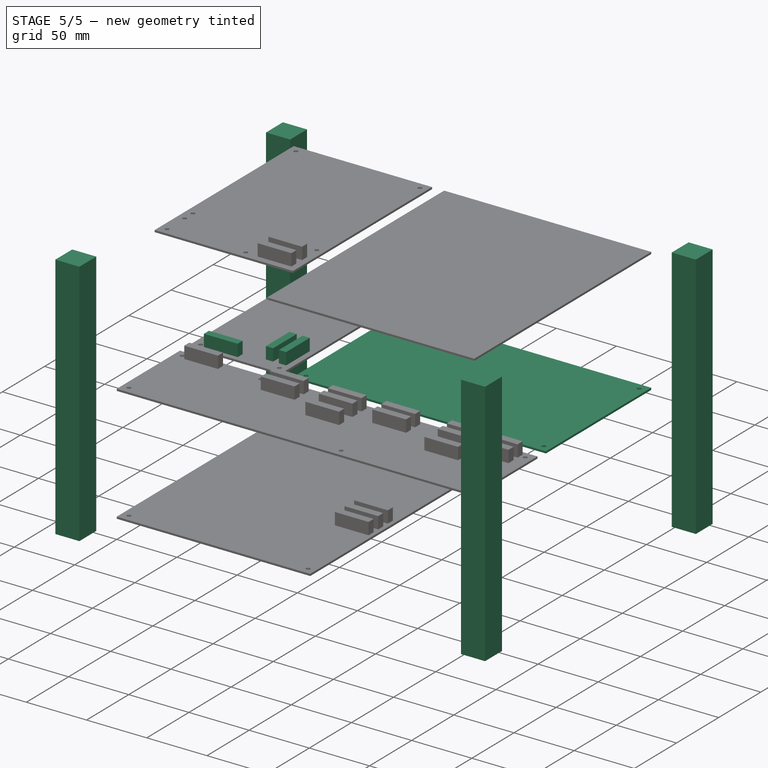
[diagram: stage 5 of 5 — iso view after this stage's code; geometry added in this stage tinted green]
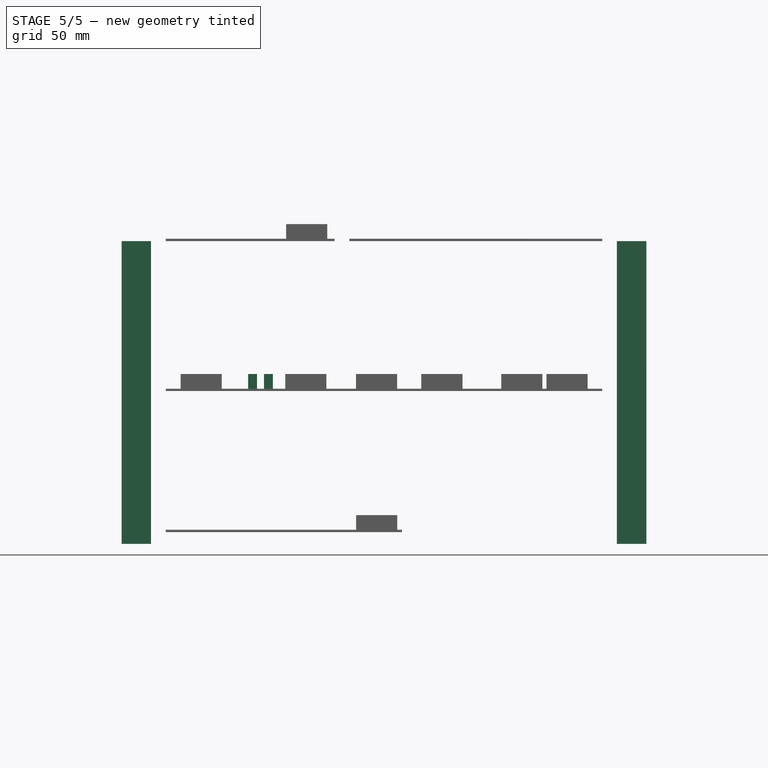
[diagram: stage 5 of 5 — front view after this stage's code; geometry added in this stage tinted green]
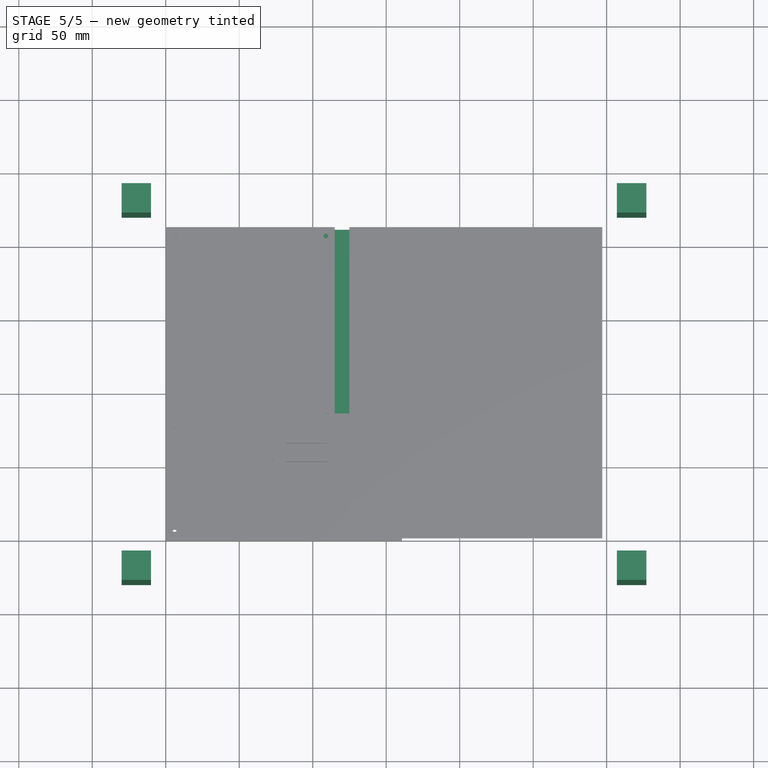
[diagram: stage 5 of 5 — top view after this stage's code; geometry added in this stage tinted green]
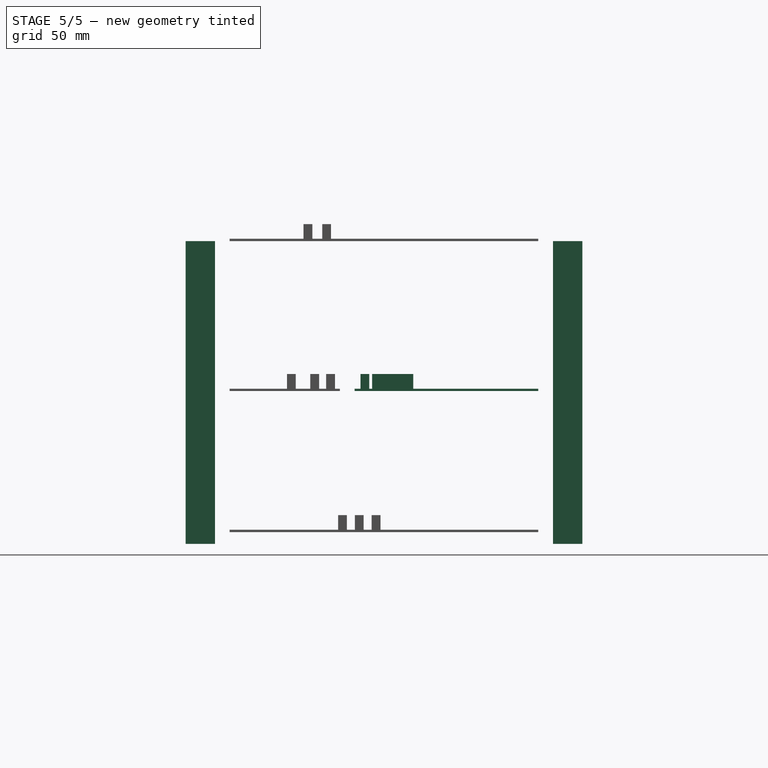
[diagram: stage 5 of 5 — right view after this stage's code; geometry added in this stage tinted green]
FEATURE [Sketcher::SketchObject] Sketch003
  ArcFitTolerance = 1e-06
  ExternalGeometry = -> [Extrude]
  FullyConstrained = true
  MakeInternals = false
  sketch-geometry (24):
    g0: LineSegment StartX=-10 StartY=-10 StartZ=0 EndX=-30 EndY=-10 EndZ=0
    g1: LineSegment StartX=-30 StartY=-10 StartZ=0 EndX=-30 EndY=-30 EndZ=0
    g2: LineSegment StartX=-30 StartY=-30 StartZ=0 EndX=-10 EndY=-30 EndZ=0
    g3: LineSegment StartX=-10 StartY=-30 StartZ=0 EndX=-10 EndY=-10 EndZ=0
    g4: LineSegment StartX=307 StartY=-10 StartZ=0 EndX=307 EndY=-30 EndZ=0
    g5: LineSegment StartX=307 StartY=-30 StartZ=0 EndX=327 EndY=-30 EndZ=0
    g6: LineSegment StartX=327 StartY=-30 StartZ=0 EndX=327 EndY=-10 EndZ=0
    g7: LineSegment StartX=327 StartY=-10 StartZ=0 EndX=307 EndY=-10 EndZ=0
    g8: LineSegment StartX=307 StartY=220 StartZ=0 EndX=327 EndY=220 EndZ=0
    g9: LineSegment StartX=327 StartY=220 StartZ=0 EndX=327 EndY=240 EndZ=0
    g10: LineSegment StartX=327 StartY=240 StartZ=0 EndX=307 EndY=240 EndZ=0
    g11: LineSegment StartX=307 StartY=240 StartZ=0 EndX=307 EndY=220 EndZ=0
    g12: LineSegment StartX=-10 StartY=220 StartZ=0 EndX=-10 EndY=240 EndZ=0
    g13: LineSegment StartX=-10 StartY=240 StartZ=0 EndX=-30 EndY=240 EndZ=0
    g14: LineSegment StartX=-30 StartY=240 StartZ=0 EndX=-30 EndY=220 EndZ=0
    g15: LineSegment StartX=-30 StartY=220 StartZ=0 EndX=-10 EndY=220 EndZ=0
    g16: LineSegment [constr] StartX=-10 StartY=220 StartZ=0 EndX=-10 EndY=-10 EndZ=0
    g17: LineSegment [constr] StartX=-10 StartY=-10 StartZ=0 EndX=307 EndY=-10 EndZ=0
    g18: LineSegment [constr] StartX=307 StartY=-10 StartZ=0 EndX=307 EndY=220 EndZ=0
    g19: LineSegment [constr] StartX=307 StartY=220 StartZ=0 EndX=-10 EndY=220 EndZ=0
    g20: LineSegment [constr] StartX=0 StartY=0 StartZ=0 EndX=-10 EndY=0 EndZ=0
    g21: LineSegment [constr] StartX=0 StartY=0 StartZ=0 EndX=0 EndY=-10 EndZ=0
    g22: LineSegment [constr] StartX=297 StartY=210 StartZ=0 EndX=297 EndY=220 EndZ=0
    g23: LineSegment [constr] StartX=297 StartY=210 StartZ=0 EndX=307 EndY=210 EndZ=0
  constraints (68):
    c: Coincident(g0,g1)
    c: Coincident(g1,g2)
    c: Coincident(g2,g3)
    c: Coincident(g3,g0)
    c: Horizontal(g0)
    c: Horizontal(g2)
    c: Vertical(g1)
    c: Vertical(g3)
    c: Distance(g1,g3) = 20
    c: Coincident(g4,g5)
    c: Coincident(g5,g6)
    c: Coincident(g6,g7)
    c: Coincident(g7,g4)
    c: Vertical(g4)
    c: Vertical(g6)
    c: Horizontal(g5)
    c: Horizontal(g7)
    c: Coincident(g8,g9)
    c: Coincident(g9,g10)
    c: Coincident(g10,g11)
    c: Coincident(g11,g8)
    c: Horizontal(g8)
    c: Horizontal(g10)
    c: Vertical(g9)
    c: Vertical(g11)
    c: Coincident(g12,g13)
    c: Coincident(g13,g14)
    c: Coincident(g14,g15)
    c: Coincident(g15,g12)
    c: Vertical(g12)
    c: Vertical(g14)
    c: Horizontal(g13)
    c: Horizontal(g15)
    c: Coincident(g16,g17)
    c: Coincident(g17,g18)
    c: Coincident(g18,g19)
    c: Coincident(g19,g16)
    c: Vertical(g16)
    c: Vertical(g18)
    c: Horizontal(g17)
    c: Horizontal(g19)
    c: Coincident(g16,g12)
    c: Coincident(g17,g4)
    c: Coincident(g8,g18)
    c: Coincident(g0,g16)
    c: Equal(g0,g3)
    c: Equal(g3,g4)
    c: Equal(g4,g7)
    c: Equal(g7,g11)
    c: Equal(g11,g8)
    c: Equal(g8,g15)
    c: Equal(g15,g12)
    c: Coincident(g20,g-1)
    c: PointOnObject(g20,g16)
    c: Horizontal(g20)
    c: Distance(g20) = 10
    c: Coincident(g21,g20)
    c: PointOnObject(g21,g17)
    c: Vertical(g21)
    c: Equal(g20,g21)
    c: Coincident(g22,g-4)
    c: PointOnObject(g22,g19)
    c: Vertical(g22)
    c: Coincident(g23,g22)
    c: PointOnObject(g23,g18)
    c: Horizontal(g23)
    c: Equal(g22,g23)
    c: Equal(g23,g20)
FEATURE [Part::Extrusion] Extrude003
  Base = -> Sketch003
  Dir = (0,0,1)
  DirMode = 2
  FaceMakerClass = Part::FaceMakerBullseye
  FaceMakerMode = 3
  LengthFwd = 206
  LengthRev = 0
  Solid = true
  Symmetric = false
FEATURE [Sketcher::SketchObject] Sketch009
  ArcFitTolerance = 1e-06
  AttachmentSupport = -> [Extrude008]
  ExternalGeometry = -> [Extrude008]
  FullyConstrained = true
  MakeInternals = false
  MapMode = 5
  Placement = pos=(0,0,105.6) rot=(0,0,1;0rad)
  sketch-geometry (17):
    g0: LineSegment StartX=10.13 StartY=94.985 StartZ=0 EndX=10.13 EndY=88.985 EndZ=0
    g1: LineSegment StartX=10.13 StartY=88.985 StartZ=0 EndX=38.13 EndY=88.985 EndZ=0
    g2: LineSegment StartX=38.13 StartY=88.985 StartZ=0 EndX=38.13 EndY=94.985 EndZ=0
    g3: LineSegment StartX=38.13 StartY=94.985 StartZ=0 EndX=10.13 EndY=94.985 EndZ=0
    g4: LineSegment StartX=62.055 StartY=96.94 StartZ=0 EndX=62.055 EndY=124.94 EndZ=0
    g5: LineSegment StartX=62.055 StartY=124.94 StartZ=0 EndX=56.055 EndY=124.94 EndZ=0
    g6: LineSegment StartX=56.055 StartY=124.94 StartZ=0 EndX=56.055 EndY=96.94 EndZ=0
    g7: LineSegment StartX=56.055 StartY=96.94 StartZ=0 EndX=62.055 EndY=96.94 EndZ=0
    g8: LineSegment StartX=72.85 StartY=96.94 StartZ=0 EndX=72.85 EndY=124.94 EndZ=0
    g9: LineSegment StartX=72.85 StartY=124.94 StartZ=0 EndX=66.85 EndY=124.94 EndZ=0
    g10: LineSegment StartX=66.85 StartY=124.94 StartZ=0 EndX=66.85 EndY=96.94 EndZ=0
    g11: LineSegment StartX=66.85 StartY=96.94 StartZ=0 EndX=72.85 EndY=96.94 EndZ=0
    g12: LineSegment [constr] StartX=10.13 StartY=88.985 StartZ=0 EndX=0 EndY=88.985 EndZ=0
    g13: LineSegment [constr] StartX=10.13 StartY=88.985 StartZ=0 EndX=10.13 EndY=85 EndZ=0
    g14: LineSegment [constr] StartX=56.055 StartY=96.94 StartZ=0 EndX=56.055 EndY=85 EndZ=0
    g15: LineSegment [constr] StartX=56.055 StartY=96.94 StartZ=0 EndX=66.85 EndY=96.94 EndZ=0
    g16: LineSegment [constr] StartX=72.85 StartY=96.94 StartZ=0 EndX=77.455 EndY=96.94 EndZ=0
  constraints (50):
    c: Coincident(g0,g1)
    c: Coincident(g1,g2)
    c: Coincident(g2,g3)
    c: Coincident(g3,g0)
    c: Vertical(g0)
    c: Vertical(g2)
    c: Horizontal(g1)
    c: Horizontal(g3)
    c: DistanceX(g3,g3) = 28
    c: DistanceY(g0,g0) = 6
    c: Coincident(g4,g5)
    c: Coincident(g5,g6)
    c: Coincident(g6,g7)
    c: Coincident(g7,g4)
    c: Vertical(g4)
    c: Vertical(g6)
    c: Horizontal(g5)
    c: Horizontal(g7)
    c: Coincident(g8,g9)
    c: Coincident(g9,g10)
    c: Coincident(g10,g11)
    c: Coincident(g11,g8)
    c: Vertical(g8)
    c: Vertical(g10)
    c: Horizontal(g9)
    c: Horizontal(g11)
    c: Coincident(g12,g0)
    c: Horizontal(g12)
    c: Coincident(g13,g0)
    c: PointOnObject(g13,g-4)
    c: Vertical(g13)
    c: Vertical(g12,g-4)
    c: DistanceX(g12,g12) = 10.13
    c: DistanceY(g13,g13) = 3.985
    c: Equal(g2,g7)
    c: Equal(g7,g11)
    c: Equal(g3,g6)
    c: Equal(g6,g10)
    c: Coincident(g14,g6)
    c: PointOnObject(g14,g-4)
    c: Vertical(g14)
    c: DistanceY(g14,g14) = 11.94
    c: Coincident(g15,g6)
    c: Coincident(g15,g10)
    c: Horizontal(g15)
    c: DistanceX(g15,g15) = 10.795
    c: Coincident(g16,g8)
    c: PointOnObject(g16,g-3)
    c: Horizontal(g16)
    c: DistanceX(g16,g16) = 4.605
FEATURE [Part::Extrusion] Extrude009
  Base = -> Sketch009
  Dir = (0,0,1)
  DirMode = 2
  FaceMakerClass = Part::FaceMakerBullseye
  FaceMakerMode = 3
  LengthFwd = 10
  LengthRev = 0
  Solid = true
  Symmetric = false
FEATURE [Sketcher::SketchObject] Sketch010
  ArcFitTolerance = 1e-06
  ExternalGeometry = -> [Extrude001,Extrude008,Extrude004]
  FullyConstrained = true
  MakeInternals = false
  Placement = pos=(0,0,104) rot=(0,0,1;0rad)
  sketch-geometry (12):
    g0: LineSegment StartX=297 StartY=210 StartZ=0 EndX=87.455 EndY=210 EndZ=0
    g1: LineSegment StartX=87.455 StartY=210 StartZ=0 EndX=87.455 EndY=85 EndZ=0
    g2: LineSegment StartX=87.455 StartY=85 StartZ=0 EndX=297 EndY=85 EndZ=0
    g3: LineSegment StartX=297 StartY=85 StartZ=0 EndX=297 EndY=210 EndZ=0
    g4: Circle CenterX=93.455 CenterY=204 CenterZ=0 NormalX=0 NormalY=0 NormalZ=1 AngleXU=0 Radius=1.6
    g5: Circle CenterX=291 CenterY=204 CenterZ=0 NormalX=0 NormalY=0 NormalZ=1 AngleXU=0 Radius=1.6
    g6: Circle CenterX=291 CenterY=91 CenterZ=0 NormalX=0 NormalY=0 NormalZ=1 AngleXU=0 Radius=1.6
    g7: Circle CenterX=93.455 CenterY=91 CenterZ=0 NormalX=0 NormalY=0 NormalZ=1 AngleXU=0 Radius=1.6
    g8: LineSegment [constr] StartX=93.455 StartY=204 StartZ=0 EndX=93.455 EndY=210 EndZ=0
    g9: LineSegment [constr] StartX=93.455 StartY=204 StartZ=0 EndX=87.455 EndY=204 EndZ=0
    g10: LineSegment [constr] StartX=291 StartY=204 StartZ=0 EndX=297 EndY=204 EndZ=0
    g11: LineSegment [constr] StartX=93.455 StartY=91 StartZ=0 EndX=93.455 EndY=85 EndZ=0
  constraints (35):
    c: Coincident(g0,g1)
    c: Coincident(g1,g2)
    c: Coincident(g2,g3)
    c: Coincident(g3,g0)
    c: Horizontal(g0)
    c: Horizontal(g2)
    c: Vertical(g1)
    c: Vertical(g3)
    c: Coincident(g0,g-3)
    c: DistanceX(g-4,g0) = 10
    c: Horizontal(g-4,g1)
    c: Diameter(g4) = 3.2
    c: Equal(g4,g5)
    c: Equal(g5,g6)
    c: Equal(g6,g7)
    c: Coincident(g8,g4)
    c: PointOnObject(g8,g0)
    c: Vertical(g8)
    c: Coincident(g9,g4)
    c: PointOnObject(g9,g1)
    c: Horizontal(g9)
    c: Distance(g9) = 6
    c: Equal(g9,g8)
    c: Coincident(g10,g5)
    c: PointOnObject(g10,g3)
    c: Horizontal(g10)
    c: Coincident(g11,g7)
    c: PointOnObject(g11,g2)
    c: Vertical(g11)
    c: Equal(g11,g8)
    c: Equal(g9,g10)
    c: Horizontal(g5,g4)
    c: Vertical(g4,g7)
    c: Vertical(g5,g6)
    c: Horizontal(g6,g7)
FEATURE [Part::Extrusion] Extrude010  label="RF16"
  Base = -> Sketch010
  Dir = (0,0,1)
  DirMode = 2
  FaceMakerClass = Part::FaceMakerBullseye
  FaceMakerMode = 3
  LengthFwd = 1.6
  LengthRev = 0
  Solid = true
  Symmetric = false
FEATURE [Part::MultiFuse] Fusion  label="CLOCK"
  Refine = true
  Shapes = -> [Extrude008,Extrude009]
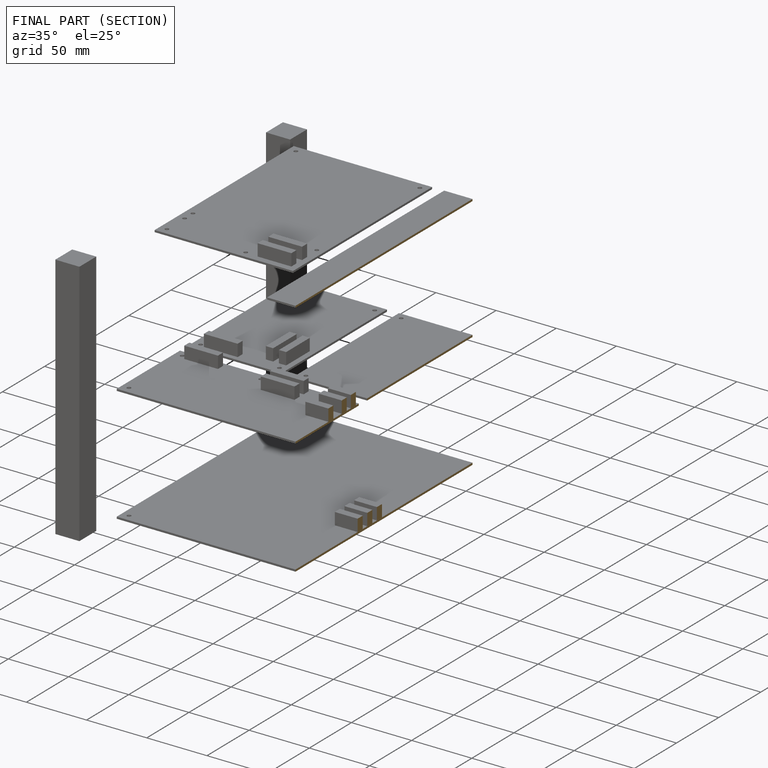
[diagram: finished part — half-section view (interior)]
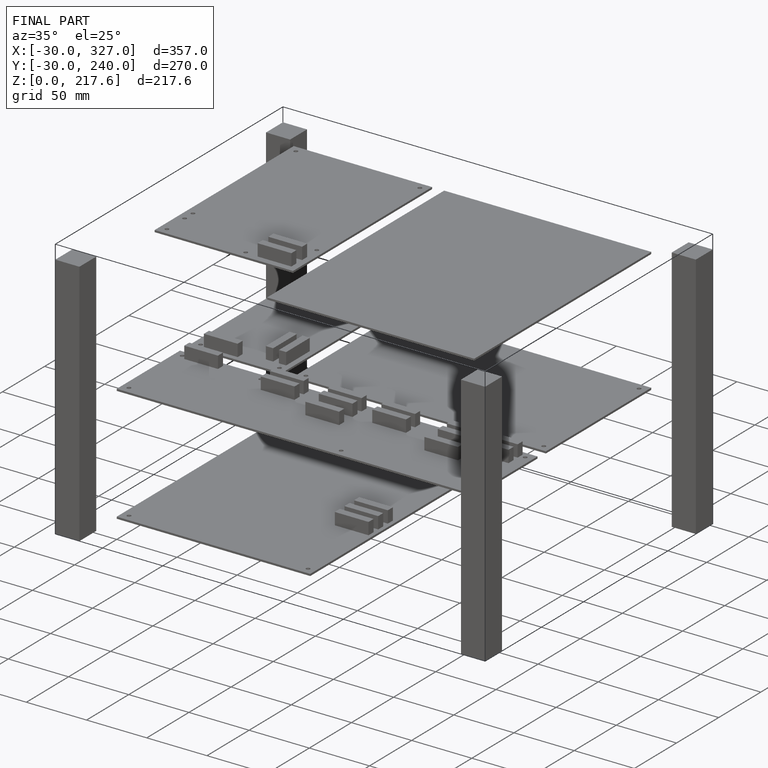
[diagram: finished part — iso view with bounding-box wireframe]
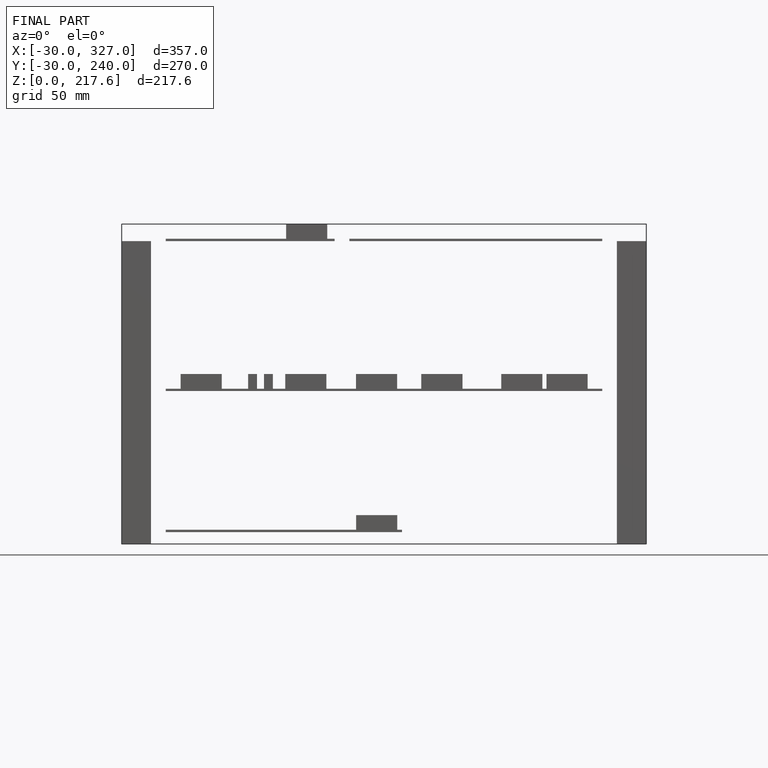
[diagram: finished part — front view with bounding-box wireframe]
